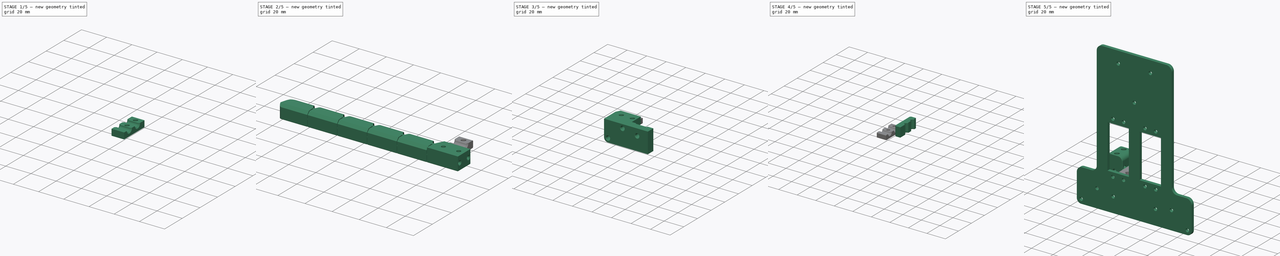
[diagram: build sequence overview — one tinted view per stage of 5, left to right]
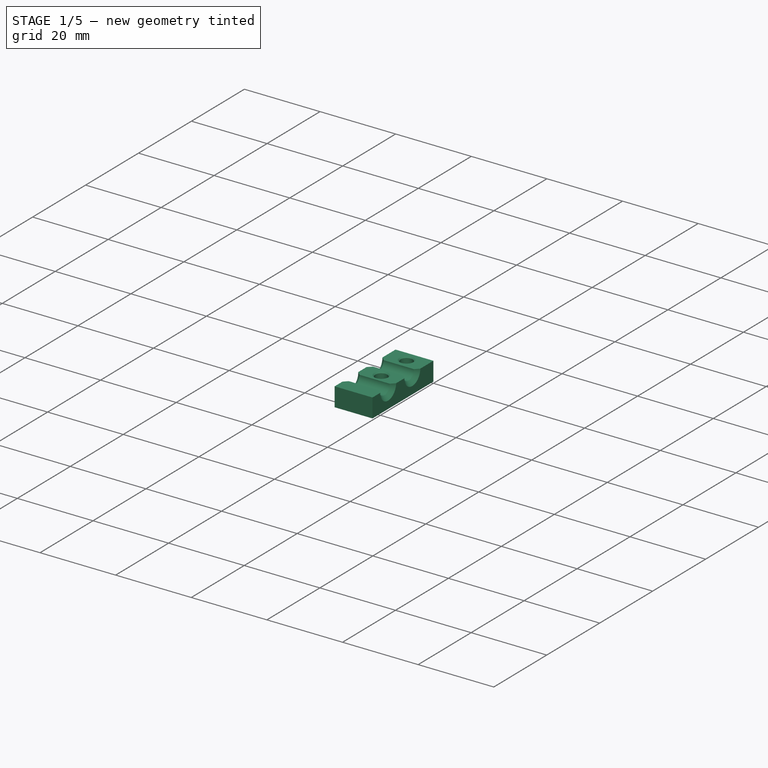
[diagram: stage 1 of 5 — iso view after this stage's code; geometry added in this stage tinted green]
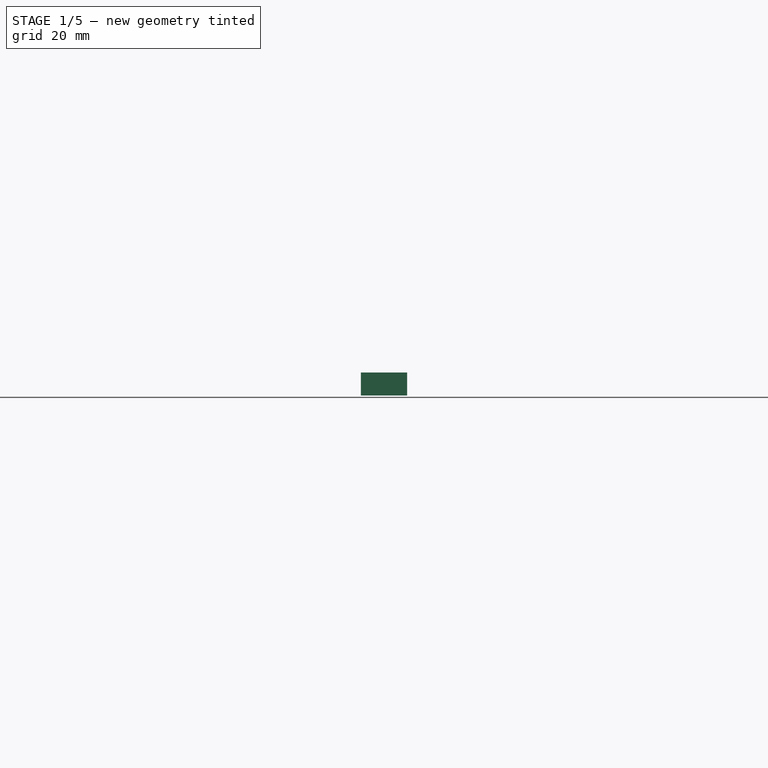
[diagram: stage 1 of 5 — front view after this stage's code; geometry added in this stage tinted green]
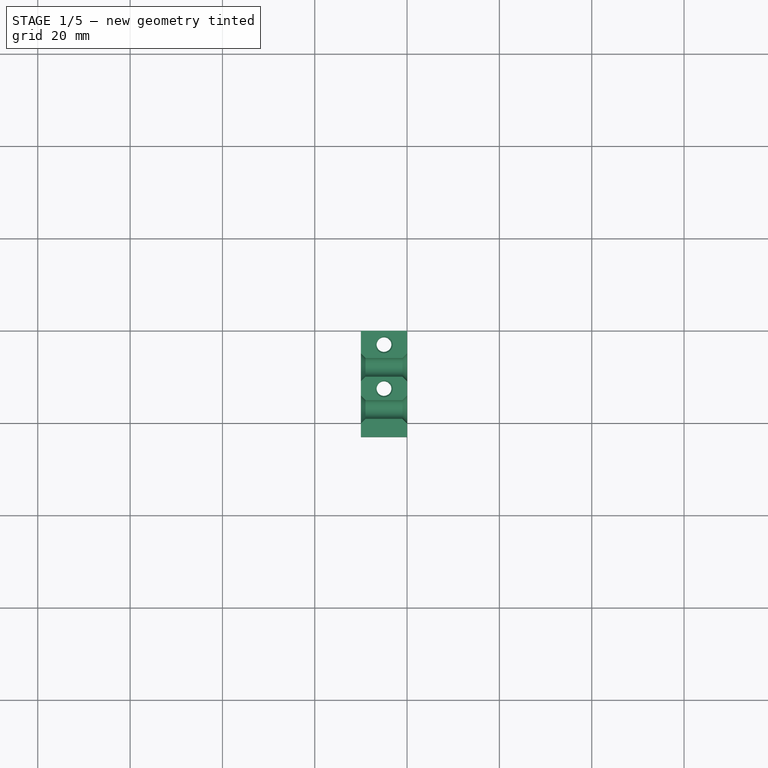
[diagram: stage 1 of 5 — top view after this stage's code; geometry added in this stage tinted green]
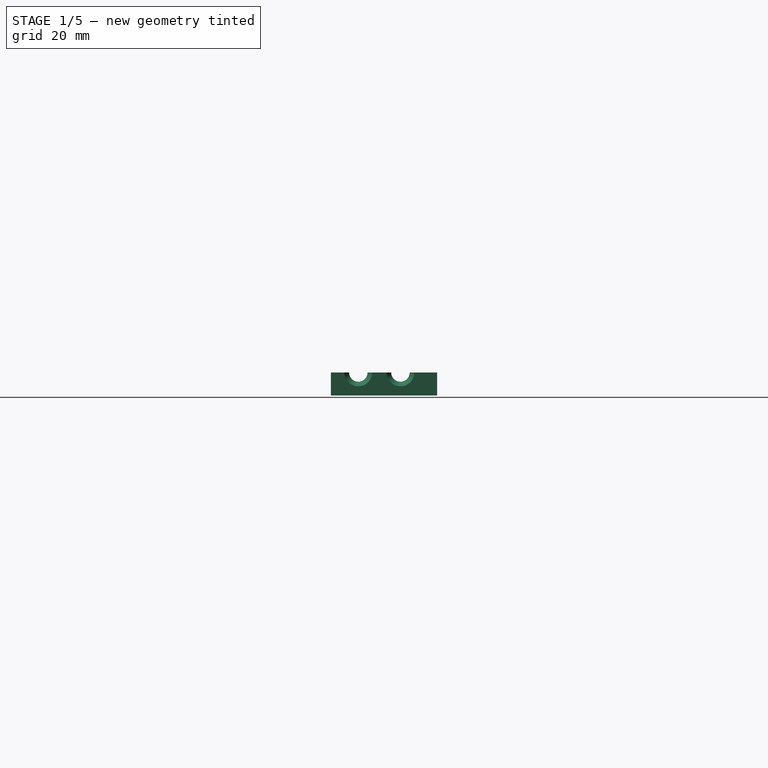
[diagram: stage 1 of 5 — right view after this stage's code; geometry added in this stage tinted green]
FCSTD DOCUMENT  (FreeCAD 2023.1102R14555 (Git shallow))
Label: finger-gripper
License: All rights reserved
LicenseURL: https://en.wikipedia.org/wiki/All_rights_reserved
objects: Sketcher::SketchObject×34, PartDesign::Chamfer×26, PartDesign::Pocket×18, PartDesign::Pad×14, PartDesign::Fillet×9, Part::SubShapeBinder×8, PartDesign::Body×7, PartDesign::SubShapeBinder×6, Part::Feature×5, App::Part×5, PartDesign::SubtractivePipe×3, PartDesign::Plane×2, PartDesign::LinearPattern×1, PartDesign::Line×1, PartDesign::Groove×1, PartDesign::Mirrored×1, TechDraw::DrawSVGTemplate×1, TechDraw::DrawProjGroupItem×1, TechDraw::DrawProjGroup×1, TechDraw::DrawPage×1, +1 more types
note: 316 computed .brp shape members not serialized (recipe doc carries the construction recipe); baked Part::Feature solids carry a one-line shape summary decoded from their .brp
EXTERNAL_REF file=main-actuator.FCStd obj=Part

FEATURE [PartDesign::Body] Body  label="FingerLeft"
  AutoGroupSolids = false
  ClaimAllChildren = false
  ExportMode = 0
  FixShape = 1
  Group = -> [Sketch,Pad,LinearPattern,Sketch001,Pad001,Sketch002,Pocket,Fillet,Fillet001,Sketch003,Pad002,Sketch004,Pocket001,Sketch005,Pocket002,Fillet002,Chamfer,Chamfer001,Sketch006,Pocket003,Chamfer002,Chamfer003,Sketch026,Pipe001,Pipe002,Chamfer019]
  InvalidShape = false
  Origin = -> Origin
  Tip = -> Chamfer019
  TreeRank = 181
  ValidateShape = false
  _ExportChildren = -> [Pad,LinearPattern,Pad001,Pocket,Fillet,Fillet001,Pad002,Pocket001,Pocket002,Fillet002,Chamfer,Chamfer001,Pocket003,Chamfer002,Chamfer003,Pipe001,Pipe002,Chamfer019]
  _GroupVersion = 1
FEATURE [Part::SubShapeBinder] Import005  label="Import005(ServoBody001)"
  BindCopyOnChange = 0
  BindMode = 0
  ClaimChildren = false
  Context = -> Part004 [Part002.Part001.Body005.Import005.]
  EdgeTolerance = 1e-06
  FillStyle = 0
  FixShape = 1
  Fuse = false
  InvalidShape = false
  MakeFace = false
  MergeEdges = true
  OffsetFill = false
  OffsetIntersection = false
  OffsetJoinType = 0
  OffsetOpenResult = false
  Outline = false
  PartialLoad = false
  Relative = true
  SplitEdges = false
  Support = -> [Part[Solid001.]]
  TightBound = false
  TreeRank = 262
  ValidateShape = false
  _Version = 8
FEATURE [Sketcher::SketchObject] Sketch027
  ArcFitTolerance = 1e-06
  AttachmentSupport = -> [XZ_Plane010]
  ExternalBSplineMaxDegree = 5
  ExternalBSplineTolerance = 0.0001
  ExternalGeometry = -> [Import005]
  FixShape = 1
  FullyConstrained = true
  InternalTolerance = 1e-06
  InvalidShape = false
  MakeInternals = false
  MapMode = 5
  Placement = pos=(0,0,0) rot=(1,0,0;1.5708rad)
  Support = -> [XZ_Plane010]
  TreeRank = 261
  ValidateShape = false
  sketch-geometry (12):
    g0: LineSegment StartX=-30.5 StartY=10.5 StartZ=0 EndX=10.5 EndY=10.5 EndZ=0
    g1: LineSegment StartX=10.5 StartY=10.5 StartZ=0 EndX=10.5 EndY=-10.5 EndZ=0
    g2: LineSegment StartX=10.5 StartY=-10.5 StartZ=0 EndX=-30.5 EndY=-10.5 EndZ=0
    g3: LineSegment StartX=-30.5 StartY=-10.5 StartZ=0 EndX=-30.5 EndY=10.5 EndZ=0
    g4: LineSegment StartX=-38 StartY=15 StartZ=0 EndX=30 EndY=15 EndZ=0
    g5: LineSegment StartX=30 StartY=15 StartZ=0 EndX=30 EndY=-15 EndZ=0
    g6: LineSegment StartX=30 StartY=-15 StartZ=0 EndX=-38 EndY=-15 EndZ=0
    g7: LineSegment StartX=-38 StartY=-15 StartZ=0 EndX=-38 EndY=15 EndZ=0
    g8: Circle CenterX=-34.5 CenterY=5 CenterZ=0 NormalX=0 NormalY=0 NormalZ=1 AngleXU=0 Radius=1.6
    g9: Circle CenterX=-34.5 CenterY=-5 CenterZ=0 NormalX=0 NormalY=0 NormalZ=1 AngleXU=0 Radius=1.6
    g10: Circle CenterX=14.5 CenterY=-5 CenterZ=0 NormalX=0 NormalY=0 NormalZ=1 AngleXU=0 Radius=1.6
    g11: Circle CenterX=14.5 CenterY=5 CenterZ=0 NormalX=0 NormalY=0 NormalZ=1 AngleXU=0 Radius=1.6
  constraints (31):
    c: Coincident(g0,g1)
    c: Coincident(g1,g2)
    c: Coincident(g2,g3)
    c: Coincident(g3,g0)
    c: Horizontal(g0)
    c: Horizontal(g2)
    c: Vertical(g1)
    c: Vertical(g3)
    c: Coincident(g4,g5)
    c: Coincident(g5,g6)
    c: Coincident(g6,g7)
    c: Coincident(g7,g4)
    c: Horizontal(g4)
    c: Horizontal(g6)
    c: Vertical(g5)
    c: Coincident(g11,g-6)
    c: Coincident(g10,g-5)
    c: Coincident(g8,g-3)
    c: Coincident(g9,g-4)
    c: Equal(g8,g9)
    c: Equal(g8,g11)
    c: Equal(g8,g10)
    c: Diameter(g8) = 3.2
    c: DistanceX(g-7,g0) = 0.5
    c: DistanceX(g0,g-8) = 0.5
    c: DistanceY(g-7,g0) = 0.5
    c: DistanceY(g1,g-7) = 0.5
    c: DistanceX(g4,g-8) = 8
    c: Symmetric(g4,g6,g-1)
    c: DistanceY(g7,g7) = 30
    c: DistanceX(g-7,g4) = 20
FEATURE [PartDesign::Pad] Pad011
  AddSubType = 0
  AlongSketchNormal = false
  AutoTaperInnerAngle = true
  CheckUpToFaceLimits = true
  ClaimChildren = false
  Direction = (0,-1,2e-16)
  Fit = 0
  FitJoin = 0
  FixShape = 1
  InnerFit = 0
  InnerFitJoin = 0
  InvalidShape = false
  Length = 5
  Length2 = 10
  Linearize = true
  NewSolid = false
  Profile = -> Sketch027
  ReferenceAxis = -> Sketch027 [N_Axis]
  Refine = true
  Suppress = false
  TaperInnerAngle = 0
  TaperInnerAngleRev = 0
  TreeRank = 263
  Type = 0
  ValidateShape = false
  _ProfileBasedVersion = 1
FEATURE [Sketcher::SketchObject] Sketch028
  ArcFitTolerance = 1e-06
  AttachmentSupport = -> [XY_Plane010]
  ExternalBSplineMaxDegree = 5
  ExternalBSplineTolerance = 0.0001
  ExternalGeometry = -> [Pad011]
  FixShape = 1
  FullyConstrained = true
  InternalTolerance = 1e-06
  InvalidShape = false
  MakeInternals = false
  MapMode = 5
  Support = -> [XY_Plane010]
  TreeRank = 264
  ValidateShape = false
  sketch-geometry (4):
    g0: LineSegment StartX=30 StartY=-5 StartZ=0 EndX=20 EndY=-5 EndZ=0
    g1: LineSegment StartX=20 StartY=-5 StartZ=0 EndX=20 EndY=-28 EndZ=0
    g2: LineSegment StartX=20 StartY=-28 StartZ=0 EndX=30 EndY=-28 EndZ=0
    g3: LineSegment StartX=30 StartY=-28 StartZ=0 EndX=30 EndY=-5 EndZ=0
  constraints (11):
    c: Coincident(g0,g1)
    c: Coincident(g1,g2)
    c: Coincident(g2,g3)
    c: Coincident(g3,g0)
    c: Horizontal(g0)
    c: Horizontal(g2)
    c: Vertical(g1)
    c: Vertical(g3)
    c: Coincident(g0,g-3)
    c: DistanceY(g1,g1) = 23
    c: DistanceX(g0,g0) = 10
FEATURE [PartDesign::Pad] Pad012
  AddSubType = 0
  AlongSketchNormal = false
  AutoTaperInnerAngle = true
  BaseFeature = -> Pad011
  CheckUpToFaceLimits = true
  ClaimChildren = false
  Direction = (0,0,1)
  Fit = 0
  FitJoin = 0
  FixShape = 1
  InnerFit = 0
  InnerFitJoin = 0
  InvalidShape = false
  Length = 10
  Length2 = 10
  Linearize = true
  NewSolid = false
  Profile = -> Sketch028
  ReferenceAxis = -> Sketch028 [N_Axis]
  Refine = true
  Suppress = false
  TaperInnerAngle = 0
  TaperInnerAngleRev = 0
  TreeRank = 265
  Type = 3
  UpToFace = -> Pad011 [Face1]
  ValidateShape = false
  _ProfileBasedVersion = 1
FEATURE [Part::SubShapeBinder] Import006  label="Import006(Chamfer011)"
  BindCopyOnChange = 0
  BindMode = 0
  ClaimChildren = false
  Context = -> Part004 [Part002.Part001.Body005.Import006.]
  EdgeTolerance = 1e-06
  FillStyle = 0
  FixShape = 1
  Fuse = false
  InvalidShape = false
  MakeFace = false
  MergeEdges = true
  OffsetFill = false
  OffsetIntersection = false
  OffsetJoinType = 0
  OffsetOpenResult = false
  Outline = false
  PartialLoad = false
  Relative = true
  SplitEdges = false
  Support = -> [Body003[Chamfer011.]]
  TightBound = false
  TreeRank = 267
  ValidateShape = false
  _Version = 8
FEATURE [Sketcher::SketchObject] Sketch029
  ArcFitTolerance = 1e-06
  AttachmentSupport = -> [Pad012]
  ExternalBSplineMaxDegree = 5
  ExternalBSplineTolerance = 0.0001
  ExternalGeometry = -> [Import006]
  FixShape = 1
  FullyConstrained = true
  InternalTolerance = 1e-06
  InvalidShape = false
  MakeInternals = false
  MapMode = 5
  Placement = pos=(30,0,0) rot=(0.57735,0.57735,0.57735;2.0944rad)
  Support = -> [Pad012]
  TreeRank = 266
  ValidateShape = false
  sketch-geometry (2):
    g0: Circle CenterX=-22.0675 CenterY=0 CenterZ=0 NormalX=0 NormalY=0 NormalZ=1 AngleXU=0 Radius=2
    g1: Circle CenterX=-12.9437 CenterY=0 CenterZ=0 NormalX=0 NormalY=0 NormalZ=1 AngleXU=0 Radius=2
  constraints (4):
    c: Coincident(g0,g-3)
    c: Coincident(g1,g-4)
    c: Equal(g0,g1)
    c: Diameter(g0) = 4
FEATURE [PartDesign::Pocket] Pocket014
  AddSubType = 1
  AlongSketchNormal = false
  AutoTaperInnerAngle = true
  BaseFeature = -> Pad012
  CheckUpToFaceLimits = true
  ClaimChildren = false
  Direction = (-1,0,0)
  Fit = 0
  FitJoin = 0
  FixShape = 1
  InnerFit = 0
  InnerFitJoin = 0
  InvalidShape = false
  Length = 5
  Length2 = 10
  Linearize = true
  NewSolid = false
  Profile = -> Sketch029
  ReferenceAxis = -> Sketch029 [N_Axis]
  Refine = true
  Suppress = false
  TaperInnerAngle = 0
  TaperInnerAngleRev = 0
  TreeRank = 268
  Type = 1
  ValidateShape = false
  _ProfileBasedVersion = 1
  _Version = 1
FEATURE [Sketcher::SketchObject] Sketch030
  ArcFitTolerance = 1e-06
  AttachmentSupport = -> [XY_Plane010]
  ExternalBSplineMaxDegree = 5
  ExternalBSplineTolerance = 0.0001
  ExternalGeometry = -> [Pocket014]
  FixShape = 1
  FullyConstrained = true
  InternalTolerance = 1e-06
  InvalidShape = false
  MakeInternals = false
  MapMode = 5
  Support = -> [XY_Plane010]
  TreeRank = 269
  ValidateShape = false
  sketch-geometry (5):
    g0: Circle CenterX=25 CenterY=-17.5056 CenterZ=0 NormalX=0 NormalY=0 NormalZ=1 AngleXU=0 Radius=1.6
    g1: Circle CenterX=25 CenterY=-7.97183 CenterZ=0 NormalX=0 NormalY=0 NormalZ=1 AngleXU=0 Radius=1.6
    g2: LineSegment [constr] StartX=25 StartY=-28 StartZ=0 EndX=25 EndY=-7.97183 EndZ=0
    g3: LineSegment [constr] StartX=20 StartY=-14.9437 StartZ=0 EndX=30 EndY=-20.0675 EndZ=0
    g4: LineSegment [constr] StartX=20 StartY=-5 StartZ=0 EndX=30 EndY=-10.9437 EndZ=0
  constraints (12):
    c: Diameter(g0) = 3.2
    c: Equal(g1,g0)
    c: Coincident(g2,g1)
    c: Vertical(g2)
    c: Symmetric(g-3,g-3,g2)
    c: PointOnObject(g0,g2)
    c: Coincident(g3,g-5)
    c: Coincident(g3,g-4)
    c: PointOnObject(g0,g3)
    c: Coincident(g4,g-8)
    c: Coincident(g4,g-6)
    c: PointOnObject(g1,g4)
FEATURE [PartDesign::Pocket] Pocket015
  AddSubType = 1
  AlongSketchNormal = false
  AutoTaperInnerAngle = true
  BaseFeature = -> Pocket014
  CheckUpToFaceLimits = true
  ClaimChildren = false
  Direction = (0,0,-1)
  Fit = 0
  FitJoin = 0
  FixShape = 1
  InnerFit = 0
  InnerFitJoin = 0
  InvalidShape = false
  Length = 5
  Length2 = 10
  Linearize = true
  NewSolid = false
  Profile = -> Sketch030
  ReferenceAxis = -> Sketch030 [N_Axis]
  Refine = true
  Reversed = true
  Suppress = false
  TaperInnerAngle = 0
  TaperInnerAngleRev = 0
  TreeRank = 270
  Type = 1
  ValidateShape = false
  _ProfileBasedVersion = 1
  _Version = 1
FEATURE [Sketcher::SketchObject] Sketch031
  ArcFitTolerance = 1e-06
  AttachmentSupport = -> [Pocket015]
  ExternalBSplineMaxDegree = 5
  ExternalBSplineTolerance = 0.0001
  ExternalGeometry = -> [Pocket015]
  FixShape = 1
  FullyConstrained = true
  InternalTolerance = 1e-06
  InvalidShape = false
  MakeInternals = false
  MapMode = 5
  Placement = pos=(0,3.5e-15,15) rot=(0,0,1;0rad)
  Support = -> [Pocket015]
  TreeRank = 271
  ValidateShape = false
  sketch-geometry (2):
    g0: Circle CenterX=25 CenterY=-7.97183 CenterZ=0 NormalX=0 NormalY=0 NormalZ=1 AngleXU=0 Radius=2.05
    g1: Circle CenterX=25 CenterY=-17.5056 CenterZ=0 NormalX=0 NormalY=0 NormalZ=1 AngleXU=0 Radius=2.05
  constraints (4):
    c: Coincident(g0,g-3)
    c: Coincident(g1,g-4)
    c: Equal(g1,g0)
    c: Diameter(g1) = 4.1
FEATURE [PartDesign::Pocket] Pocket016
  AddSubType = 1
  AlongSketchNormal = false
  AutoTaperInnerAngle = true
  BaseFeature = -> Pocket015
  CheckUpToFaceLimits = true
  ClaimChildren = false
  Direction = (0,-2e-16,-1)
  Fit = 0
  FitJoin = 0
  FixShape = 1
  InnerFit = 0
  InnerFitJoin = 0
  InvalidShape = false
  Length = 10
  Length2 = 10
  Linearize = true
  NewSolid = false
  Profile = -> Sketch031
  ReferenceAxis = -> Sketch031 [N_Axis]
  Refine = true
  Suppress = false
  TaperInnerAngle = 0
  TaperInnerAngleRev = 0
  TreeRank = 272
  Type = 0
  ValidateShape = false
  _ProfileBasedVersion = 1
  _Version = 1
FEATURE [Part::SubShapeBinder] Import007  label="Import007(Pocket016)"
  BindCopyOnChange = 0
  BindMode = 0
  ClaimChildren = false
  Context = -> Part004 [Part002.Part001.Body006.Import007.]
  EdgeTolerance = 1e-06
  FillStyle = 0
  FixShape = 1
  Fuse = false
  InvalidShape = false
  MakeFace = false
  MergeEdges = true
  OffsetFill = false
  OffsetIntersection = false
  OffsetJoinType = 0
  OffsetOpenResult = false
  Outline = false
  PartialLoad = false
  Relative = true
  SplitEdges = false
  Support = -> [Body005[Pocket016.]]
  TightBound = false
  TreeRank = 284
  ValidateShape = false
  _Version = 8
FEATURE [Sketcher::SketchObject] Sketch032
  ArcFitTolerance = 1e-06
  AttachmentSupport = -> [YZ_Plane011]
  ExternalBSplineMaxDegree = 5
  ExternalBSplineTolerance = 0.0001
  ExternalGeometry = -> [Import007]
  FixShape = 1
  FullyConstrained = true
  InternalTolerance = 1e-06
  InvalidShape = false
  MakeInternals = false
  MapMode = 5
  Placement = pos=(0,0,0) rot=(0.57735,0.57735,0.57735;2.0944rad)
  Support = -> [YZ_Plane011]
  TreeRank = 283
  ValidateShape = false
  sketch-geometry (8):
    g0: ArcOfCircle CenterX=-17.0675 CenterY=-3.8e-15 CenterZ=0 NormalX=0 NormalY=0 NormalZ=1 AngleXU=0 Radius=2 StartAngle=3.14159 EndAngle=6.28319
    g1: ArcOfCircle CenterX=-7.94365 CenterY=-1.8e-15 CenterZ=0 NormalX=0 NormalY=0 NormalZ=1 AngleXU=0 Radius=2 StartAngle=3.14159 EndAngle=6.28319
    g2: LineSegment StartX=-15.0675 StartY=-2.5e-15 StartZ=0 EndX=-9.94365 EndY=-2.4e-15 EndZ=0
    g3: LineSegment StartX=-5.94365 StartY=-5e-16 StartZ=0 EndX=0 EndY=0 EndZ=0
    g4: LineSegment StartX=-19.0675 StartY=-3.5e-15 StartZ=0 EndX=-23 EndY=-6.4e-15 EndZ=0
    g5: LineSegment StartX=-23 StartY=-6.4e-15 StartZ=0 EndX=-23 EndY=-5 EndZ=0
    g6: LineSegment StartX=-23 StartY=-5 StartZ=0 EndX=0 EndY=-5 EndZ=0
    g7: LineSegment StartX=0 StartY=-5 StartZ=0 EndX=0 EndY=0 EndZ=0
  constraints (20):
    c: Coincident(g0,g-3)
    c: Coincident(g0,g-3)
    c: Coincident(g0,g-3)
    c: Coincident(g1,g-4)
    c: Coincident(g1,g-4)
    c: Coincident(g1,g-4)
    c: Coincident(g2,g0)
    c: Coincident(g2,g1)
    c: Coincident(g3,g1)
    c: Coincident(g3,g-6)
    c: Coincident(g4,g0)
    c: Coincident(g4,g-5)
    c: Coincident(g5,g4)
    c: Vertical(g5)
    c: Coincident(g6,g5)
    c: PointOnObject(g6,g-6)
    c: Horizontal(g6)
    c: Coincident(g7,g6)
    c: Coincident(g7,g3)
    c: DistanceY(g5,g5) = 5
FEATURE [PartDesign::Pad] Pad013
  AddSubType = 0
  AlongSketchNormal = false
  AutoTaperInnerAngle = true
  CheckUpToFaceLimits = true
  ClaimChildren = false
  Direction = (1,-2e-16,3e-16)
  Fit = 0
  FitJoin = 0
  FixShape = 1
  InnerFit = 0
  InnerFitJoin = 0
  InvalidShape = false
  Length = 10
  Length2 = 10
  Linearize = true
  NewSolid = false
  Profile = -> Sketch032
  ReferenceAxis = -> Sketch032 [N_Axis]
  Refine = true
  Reversed = true
  Suppress = false
  TaperInnerAngle = 0
  TaperInnerAngleRev = 0
  TreeRank = 285
  Type = 0
  ValidateShape = false
  _ProfileBasedVersion = 1
FEATURE [PartDesign::SubShapeBinder] Binder005  label="Binder005(Pocket016)..."
  BindCopyOnChange = 0
  BindMode = 0
  ClaimChildren = false
  Context = -> Part004 [Part002.Part001.Body006.Binder005.]
  EdgeTolerance = 1e-06
  FillStyle = 0
  FixShape = 1
  Fuse = false
  InvalidShape = false
  MakeFace = true
  MergeEdges = true
  OffsetFill = false
  OffsetIntersection = false
  OffsetJoinType = 0
  OffsetOpenResult = false
  Outline = false
  PartialLoad = false
  Relative = true
  SplitEdges = false
  Support = -> [Body005[Pocket016.Face21,Pocket016.Face19]]
  TightBound = false
  TreeRank = 286
  ValidateShape = false
  _Version = 8
FEATURE [Sketcher::SketchObject] Sketch033
  ArcFitTolerance = 1e-06
  AttachmentSupport = -> [Pad013]
  ExternalBSplineMaxDegree = 5
  ExternalBSplineTolerance = 0.0001
  ExternalGeometry = -> [Binder005]
  FixShape = 1
  FullyConstrained = true
  InternalTolerance = 1e-06
  InvalidShape = false
  MakeInternals = false
  MapMode = 5
  Placement = pos=(0,0,-2.2e-15) rot=(0,0,1;0rad)
  Support = -> [Pad013]
  TreeRank = 287
  ValidateShape = false
FEATURE [PartDesign::Pocket] Pocket017
  AddSubType = 1
  AlongSketchNormal = false
  AutoTaperInnerAngle = true
  BaseFeature = -> Pad013
  CheckUpToFaceLimits = true
  ClaimChildren = false
  Direction = (3e-16,-2e-16,-1)
  Fit = 0
  FitJoin = 0
  FixShape = 1
  InnerFit = 0
  InnerFitJoin = 0
  InvalidShape = false
  Length = 5
  Length2 = 10
  Linearize = true
  NewSolid = false
  Profile = -> Sketch033
  ReferenceAxis = -> Sketch033 [N_Axis]
  Refine = true
  Suppress = false
  TaperInnerAngle = 0
  TaperInnerAngleRev = 0
  TreeRank = 288
  Type = 1
  ValidateShape = false
  _ProfileBasedVersion = 1
  _Version = 1
FEATURE [PartDesign::Chamfer] Chamfer020
  AddSubType = 0
  Angle = 45
  Base = -> Pocket017 [Edge11,Edge27,Edge25,Edge29]
  BaseFeature = -> Pocket017
  ChamferType = 0
  FixShape = 1
  FlipDirection = false
  InvalidShape = false
  NewSolid = false
  Refine = true
  Size = 0.3
  Size2 = 1
  SupportTransform = false
  Suppress = false
  TreeRank = 289
  UseAllEdges = false
  ValidateShape = false
FEATURE [PartDesign::Chamfer] Chamfer021
  AddSubType = 0
  Angle = 45
  Base = -> Chamfer020 [Edge11,Edge9,Edge10,Edge17]
  BaseFeature = -> Chamfer020
  ChamferType = 0
  FixShape = 1
  FlipDirection = false
  InvalidShape = false
  NewSolid = false
  Refine = true
  Size = 1
  Size2 = 1
  SupportTransform = false
  Suppress = false
  TreeRank = 290
  UseAllEdges = false
  ValidateShape = false
FEATURE [PartDesign::Body] Body006  label="BrideSupportTube"
  AutoGroupSolids = false
  ClaimAllChildren = false
  ExportMode = 0
  FixShape = 1
  Group = -> [Sketch032,Import007,Pad013,Binder005,Sketch033,Pocket017,Chamfer020,Chamfer021,Chamfer022]
  InvalidShape = false
  Origin = -> Origin011
  Placement = pos=(30,11,0) rot=(0,0,1;0rad)
  SingleSolid = true
  Tip = -> Chamfer022
  TreeRank = 282
  ValidateShape = false
  _ExportChildren = -> [Import007,Pad013,Binder005,Pocket017,Chamfer020,Chamfer021,Chamfer022]
  _GroupVersion = 1
FEATURE [PartDesign::Chamfer] Chamfer023
  AddSubType = 0
  Angle = 45
  Base = -> Pocket016 [Edge64,Edge61]
  BaseFeature = -> Pocket016
  ChamferType = 0
  FixShape = 1
  FlipDirection = false
  InvalidShape = false
  NewSolid = false
  Refine = true
  Size = 0.2
  Size2 = 1
  SupportTransform = false
  Suppress = false
  TreeRank = 292
  UseAllEdges = false
  ValidateShape = false
FEATURE [PartDesign::Chamfer] Chamfer024
  AddSubType = 0
  Angle = 45
  Base = -> Chamfer023 [Edge14,Edge12,Edge18,Edge32]
  BaseFeature = -> Chamfer023
  ChamferType = 0
  FixShape = 1
  FlipDirection = false
  InvalidShape = false
  NewSolid = false
  Refine = true
  Size = 1
  Size2 = 1
  SupportTransform = false
  Suppress = false
  TreeRank = 293
  UseAllEdges = false
  ValidateShape = false
FEATURE [PartDesign::Chamfer] Chamfer025
  AddSubType = 0
  Angle = 45
  Base = -> Chamfer024 [Edge4,Edge31,Edge43,Edge61]
  BaseFeature = -> Chamfer024
  ChamferType = 0
  FixShape = 1
  FlipDirection = false
  InvalidShape = false
  NewSolid = false
  Refine = true
  Size = 0.4
  Size2 = 1
  SupportTransform = false
  Suppress = false
  TreeRank = 294
  UseAllEdges = false
  ValidateShape = false
FEATURE [PartDesign::Chamfer] Chamfer026
  AddSubType = 0
  Angle = 45
  Base = -> Chamfer025 [Edge22,Edge42,Edge73,Edge74]
  BaseFeature = -> Chamfer025
  ChamferType = 0
  FixShape = 1
  FlipDirection = false
  InvalidShape = false
  NewSolid = false
  Refine = true
  Size = 1
  Size2 = 1
  SupportTransform = false
  Suppress = false
  TreeRank = 295
  UseAllEdges = false
  ValidateShape = false
FEATURE [PartDesign::Chamfer] Chamfer027
  AddSubType = 0
  Angle = 45
  Base = -> Chamfer026 [Edge8,Edge26,Edge53]
  BaseFeature = -> Chamfer026
  ChamferType = 0
  FixShape = 1
  FlipDirection = false
  InvalidShape = false
  NewSolid = false
  Refine = true
  Size = 4
  Size2 = 1
  SupportTransform = false
  Suppress = false
  TreeRank = 296
  UseAllEdges = false
  ValidateShape = false
FEATURE [PartDesign::Chamfer] Chamfer028
  AddSubType = 0
  Angle = 45
  Base = -> Chamfer027 [Edge41,Edge42,Edge22,Edge21,Edge48,Edge24,Edge43,Edge23,Face2]
  BaseFeature = -> Chamfer027
  ChamferType = 0
  FixShape = 1
  FlipDirection = false
  InvalidShape = false
  NewSolid = false
  Refine = true
  Size = 0.4
  Size2 = 1
  SupportTransform = false
  Suppress = false
  TreeRank = 297
  UseAllEdges = false
  ValidateShape = false
FEATURE [PartDesign::Body] Body005  label="SupportTube"
  AutoGroupSolids = false
  ClaimAllChildren = false
  ExportMode = 0
  FixShape = 1
  Group = -> [Sketch027,Import005,Pad011,Sketch028,Pad012,Sketch029,Import006,Pocket014,Sketch030,Pocket015,Sketch031,Pocket016,Chamfer023,Chamfer024,Chamfer025,Chamfer026,Chamfer027,Chamfer028]
  InvalidShape = false
  Origin = -> Origin010
  Placement = pos=(0,16,0) rot=(0,0,1;0rad)
  SingleSolid = true
  Tip = -> Chamfer028
  TreeRank = 260
  ValidateShape = false
  _ExportChildren = -> [Import005,Pad011,Pad012,Import006,Pocket014,Pocket015,Pocket016,Chamfer023,Chamfer024,Chamfer025,Chamfer026,Chamfer027,Chamfer028]
  _GroupVersion = 1
FEATURE [App::Part] Part001  label="Servo"
  ClaimAllChildren = false
  ExportMode = 1
  Group = -> [Solid,Part,Body003,Body005,Body006]
  Origin = -> Origin004
  Placement = pos=(19.8,-28,113.6) rot=(-0.707107,0,0.707107;3.14159rad)
  TreeRank = 99
  _ExportChildren = -> [Solid,Part,Body003,Body005,Body006]
  _GroupVersion = 1
FEATURE [App::Part] Part002  label="LeftFingerGripper"
  ClaimAllChildren = false
  ExportMode = 1
  Group = -> [Body002,Part001,Body,Body001,Part003,Link001,Body004]
  Origin = -> Origin006
  Placement = pos=(-32,41.15,0) rot=(0,0,1;0rad)
  TreeRank = 157
  _ExportChildren = -> [Body002,Part001,Body,Body001,Part003,Link001,Body004]
  _GroupVersion = 1
FEATURE [App::Part] Part004  label="DualFingerGripper"
  ClaimAllChildren = false
  ExportMode = 1
  Group = -> [Part002]
  Origin = -> Origin008
  TreeRank = 198
  _ExportChildren = -> [Part002]
  _GroupVersion = 1
note: 1 file-system path scrubbed to <path> (originals preserved in the JSON sidecar)

RESOLVED EXTERNAL PARTS (link-assembly join: the EXTERNAL_REF files above that resolve inside this repo's crawl, each included once):
---- part main-actuator.FCStd = doc fcstd_d0ad67d6f4f1 (84396 chars; too large to inline — full recipe in that document) ----
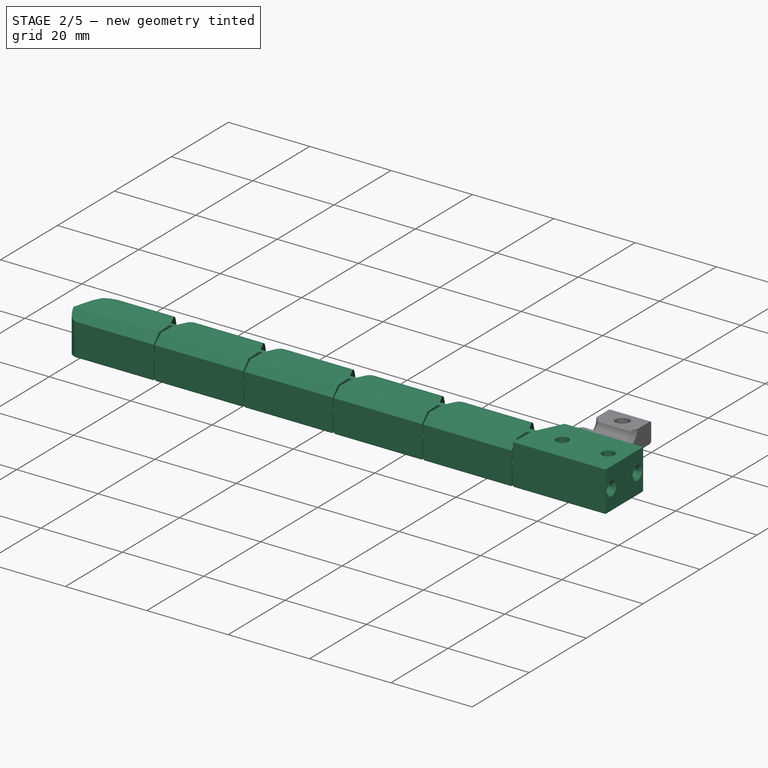
[diagram: stage 2 of 5 — iso view after this stage's code; geometry added in this stage tinted green]
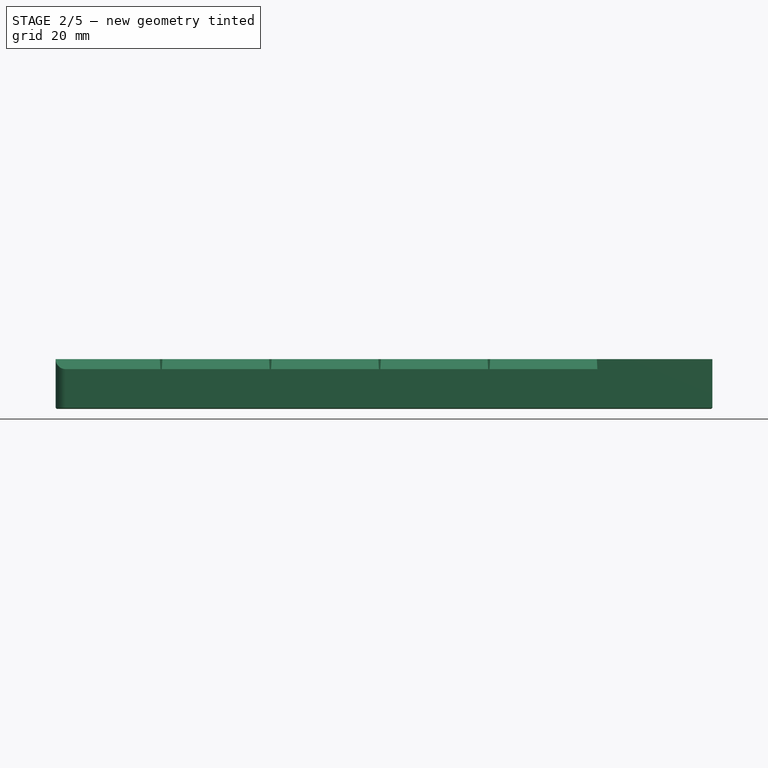
[diagram: stage 2 of 5 — front view after this stage's code; geometry added in this stage tinted green]
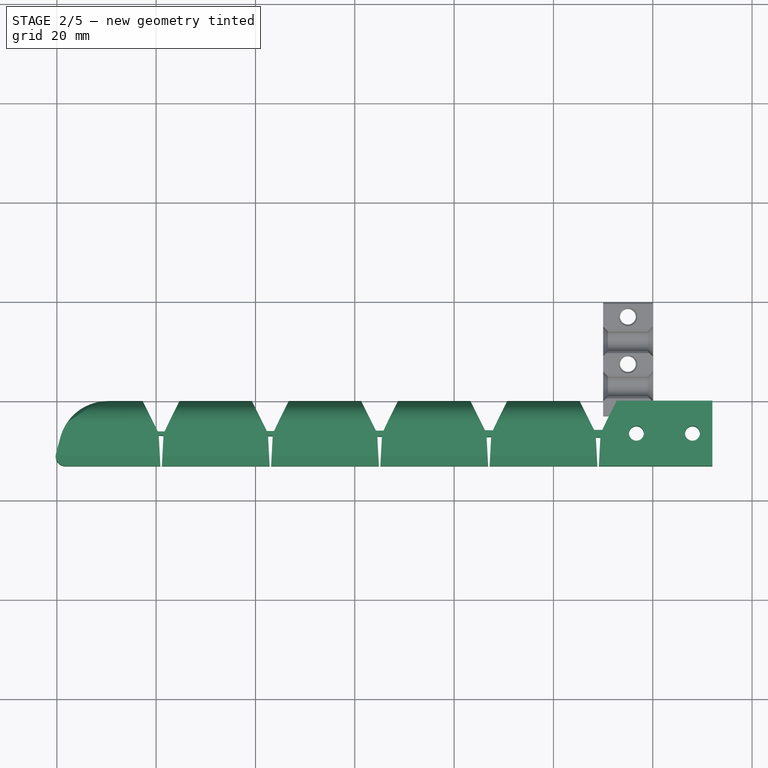
[diagram: stage 2 of 5 — top view after this stage's code; geometry added in this stage tinted green]
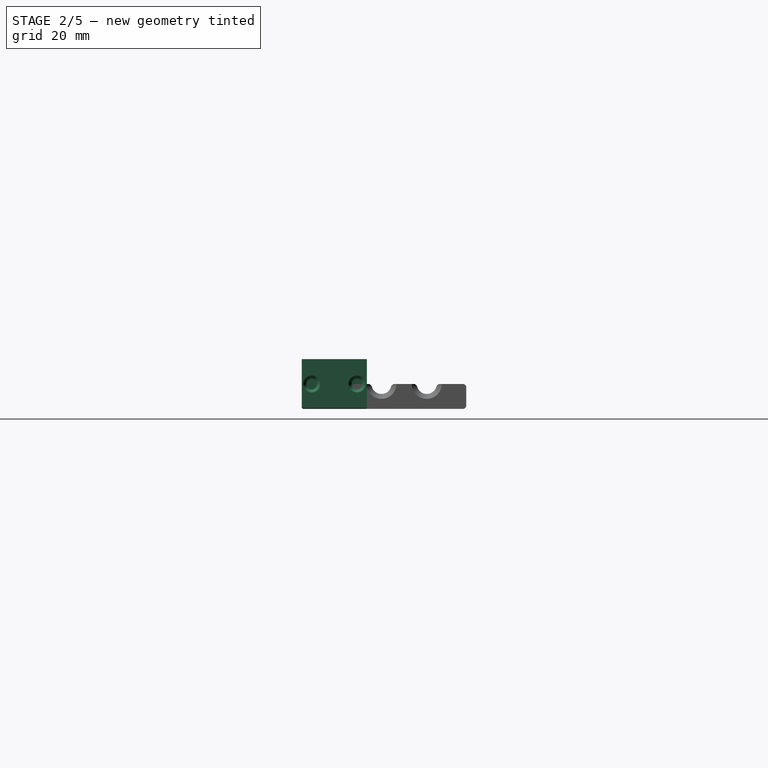
[diagram: stage 2 of 5 — right view after this stage's code; geometry added in this stage tinted green]
FEATURE [Sketcher::SketchObject] Sketch
  ArcFitTolerance = 1e-06
  AttachmentSupport = -> [XY_Plane]
  ExternalBSplineMaxDegree = 5
  ExternalBSplineTolerance = 0.0001
  FixShape = 1
  FullyConstrained = true
  InternalTolerance = 1e-06
  InvalidShape = false
  MakeInternals = false
  MapMode = 5
  Support = -> [XY_Plane]
  TreeRank = 11
  ValidateShape = false
  sketch-geometry (29):
    g0: LineSegment [constr] StartX=8.28427 StartY=-20 StartZ=0 EndX=20 EndY=-8.28427 EndZ=0
    g1: LineSegment [constr] StartX=20 StartY=-8.28427 StartZ=0 EndX=20 EndY=8.28427 EndZ=0
    g2: LineSegment [constr] StartX=20 StartY=8.28427 StartZ=0 EndX=8.28427 EndY=20 EndZ=0
    g3: LineSegment [constr] StartX=8.28427 StartY=20 StartZ=0 EndX=-8.28427 EndY=20 EndZ=0
    g4: LineSegment [constr] StartX=-8.28427 StartY=20 StartZ=0 EndX=-20 EndY=8.28427 EndZ=0
    g5: LineSegment [constr] StartX=-20 StartY=8.28427 StartZ=0 EndX=-20 EndY=-8.28427 EndZ=0
    g6: LineSegment [constr] StartX=-20 StartY=-8.28427 StartZ=0 EndX=-8.28427 EndY=-20 EndZ=0
    g7: LineSegment [constr] StartX=-8.28427 StartY=-20 StartZ=0 EndX=8.28427 EndY=-20 EndZ=0
    g8: Circle [constr] CenterX=0 CenterY=0 CenterZ=0 NormalX=0 NormalY=0 NormalZ=1 AngleXU=0 Radius=21.6478
    g9: LineSegment [constr] StartX=11 StartY=-26.5563 StartZ=0 EndX=26.5563 EndY=-11 EndZ=0
    g10: LineSegment [constr] StartX=26.5563 StartY=-11 StartZ=0 EndX=26.5563 EndY=11 EndZ=0
    g11: LineSegment [constr] StartX=26.5563 StartY=11 StartZ=0 EndX=11 EndY=26.5563 EndZ=0
    g12: LineSegment [constr] StartX=11 StartY=26.5563 StartZ=0 EndX=-11 EndY=26.5563 EndZ=0
    g13: LineSegment [constr] StartX=-11 StartY=26.5563 StartZ=0 EndX=-26.5563 EndY=11 EndZ=0
    g14: LineSegment [constr] StartX=-26.5563 StartY=11 StartZ=0 EndX=-26.5563 EndY=-11 EndZ=0
    g15: LineSegment [constr] StartX=-26.5563 StartY=-11 StartZ=0 EndX=-11 EndY=-26.5563 EndZ=0
    g16: LineSegment [constr] StartX=-11 StartY=-26.5563 StartZ=0 EndX=11 EndY=-26.5563 EndZ=0
    g17: Circle [constr] CenterX=0 CenterY=0 CenterZ=0 NormalX=0 NormalY=0 NormalZ=1 AngleXU=0 Radius=28.7444
    g18: LineSegment [constr] StartX=-7.28427 StartY=-20 StartZ=0 EndX=7.28427 EndY=-20 EndZ=0
    g19: LineSegment [constr] StartX=-11 StartY=-26.5563 StartZ=0 EndX=11 EndY=-26.5563 EndZ=0
    g20: LineSegment [constr] StartX=-10.5 StartY=-26.5563 StartZ=0 EndX=10.5 EndY=-26.5563 EndZ=0
    g21: LineSegment StartX=7.28427 StartY=-20 StartZ=0 EndX=10.5 EndY=-26.5563 EndZ=0
    g22: LineSegment StartX=-7.28427 StartY=-20 StartZ=0 EndX=-10.5 EndY=-26.5563 EndZ=0
    g23: LineSegment StartX=-10.5 StartY=-26.5563 StartZ=0 EndX=-10.85 EndY=-33.1127 EndZ=0
    g24: LineSegment StartX=-10.85 StartY=-33.1127 StartZ=0 EndX=10.85 EndY=-33.1127 EndZ=0
    g25: LineSegment StartX=10.85 StartY=-33.1127 StartZ=0 EndX=10.5 EndY=-26.5563 EndZ=0
    g26: LineSegment StartX=-7.28427 StartY=-20 StartZ=0 EndX=7.28427 EndY=-20 EndZ=0
    g27: LineSegment [constr] StartX=0 StartY=-20 StartZ=0 EndX=0 EndY=-26.5563 EndZ=0
    g28: LineSegment [constr] StartX=0 StartY=-26.5563 StartZ=0 EndX=0 EndY=-33.1127 EndZ=0
  constraints (68):
    c: Coincident(g0,g1)
    c: Coincident(g1,g2)
    c: Coincident(g2,g3)
    c: Coincident(g3,g4)
    c: Coincident(g4,g5)
    c: Coincident(g5,g6)
    c: Coincident(g6,g7)
    c: Coincident(g7,g0)
    c: Equal(g0, g1-g7) x7
    c: PointOnObject(g0,g8)
    c: PointOnObject(g1,g8)
    c: PointOnObject(g2,g8)
    c: PointOnObject(g3,g8)
    c: PointOnObject(g4,g8)
    c: PointOnObject(g5,g8)
    c: PointOnObject(g6,g8)
    c: PointOnObject(g7,g8)
    c: Coincident(g8,g-1)
    c: Horizontal(g7)
    c: Coincident(g9,g10)
    c: Coincident(g10,g11)
    c: Coincident(g11,g12)
    c: Coincident(g12,g13)
    c: Coincident(g13,g14)
    c: Coincident(g14,g15)
    c: Coincident(g15,g16)
    c: Coincident(g16,g9)
    c: Equal(g9, g10-g16) x7
    c: PointOnObject(g9,g17)
    c: PointOnObject(g10,g17)
    c: PointOnObject(g11,g17)
    c: PointOnObject(g12,g17)
    c: PointOnObject(g13,g17)
    c: PointOnObject(g14,g17)
    c: PointOnObject(g15,g17)
    c: PointOnObject(g16,g17)
    c: Coincident(g17,g8)
    c: Horizontal(g16)
    c: DistanceY(g0,g2) = 40
    c: DistanceX(g16,g16) = 22
    c: PointOnObject(g18,g7)
    c: Symmetric(g18,g18,g-2)
    c: Coincident(g19,g15)
    c: Coincident(g19,g9)
    c: DistanceX(g18,g0) = 1
    c: PointOnObject(g20,g16)
    c: Symmetric(g20,g20,g-2)
    c: Coincident(g21,g18)
    c: Coincident(g21,g20)
    c: Coincident(g22,g18)
    c: Coincident(g22,g20)
    c: DistanceX(g20,g9) = 0.5
    c: Coincident(g25,g24)
    c: Coincident(g24,g23)
    c: Symmetric(g23,g24,g-2)
    c: Symmetric(g25,g23,g-2)
    c: DistanceX(g24,g24) = 21.7
    c: Coincident(g26,g22)
    c: Coincident(g26,g21)
    c: Coincident(g23,g22)
    c: DistanceY(g21,g21) = 6.55635
    c: Vertical(g27)
    c: PointOnObject(g28,g24)
    c: Vertical(g28)
    c: Equal(g28,g27)
    c: Coincident(g28,g27)
    c: PointOnObject(g27,g26)
    c: Symmetric(g22,g21,g27)
FEATURE [PartDesign::Pad] Pad
  AddSubType = 0
  AlongSketchNormal = false
  AutoTaperInnerAngle = true
  CheckUpToFaceLimits = true
  ClaimChildren = false
  Direction = (0,0,1)
  Fit = 0
  FitJoin = 0
  FixShape = 1
  InnerFit = 0
  InnerFitJoin = 0
  InvalidShape = false
  Length = 10
  Length2 = 10
  Linearize = true
  Midplane = true
  NewSolid = false
  Profile = -> Sketch
  ReferenceAxis = -> Sketch [N_Axis]
  Refine = true
  Suppress = false
  TaperInnerAngle = 0
  TaperInnerAngleRev = 0
  TreeRank = 12
  Type = 0
  ValidateShape = false
  _ProfileBasedVersion = 1
FEATURE [PartDesign::LinearPattern] LinearPattern
  AddSubType = 0
  BaseFeature = -> Pad
  CopyShape = false
  Direction = -> Sketch [H_Axis]
  FixShape = 1
  InvalidShape = false
  Length = 110
  NewSolid = false
  Occurrences = 6
  OriginalSubs = -> [Pad]
  Originals = -> [Pad]
  ParallelTransform = true
  Refine = true
  Reversed = true
  SubTransform = true
  Suppress = false
  TreeRank = 13
  ValidateShape = false
  _Version = 3
FEATURE [Sketcher::SketchObject] Sketch001
  ArcFitTolerance = 1e-06
  AttachmentSupport = -> [XY_Plane]
  ExternalBSplineMaxDegree = 5
  ExternalBSplineTolerance = 0.0001
  ExternalGeometry = -> [LinearPattern]
  FixShape = 1
  FullyConstrained = true
  InternalTolerance = 1e-06
  InvalidShape = false
  MakeInternals = false
  MapMode = 5
  Support = -> [XY_Plane]
  TreeRank = 14
  ValidateShape = false
  sketch-geometry (6):
    g0: LineSegment StartX=-120.5 StartY=-26.5563 StartZ=0 EndX=-120.517 EndY=-26.8723 EndZ=0
    g1: LineSegment StartX=-120.517 StartY=-26.8723 StartZ=0 EndX=10.545 EndY=-27.3989 EndZ=0
    g2: LineSegment StartX=10.545 StartY=-27.3989 StartZ=0 EndX=10.5 EndY=-26.5563 EndZ=0
    g3: LineSegment StartX=10.5 StartY=-26.5563 StartZ=0 EndX=10.1285 EndY=-25.7989 EndZ=0
    g4: LineSegment StartX=-120.5 StartY=-26.5563 StartZ=0 EndX=-120.361 EndY=-26.2723 EndZ=0
    g5: LineSegment StartX=-120.361 StartY=-26.2723 StartZ=0 EndX=10.1285 EndY=-25.7989 EndZ=0
  constraints (16):
    c: Coincident(g0,g1)
    c: Coincident(g1,g2)
    c: PointOnObject(g1,g-3)
    c: PointOnObject(g0,g-4)
    c: Coincident(g3,g2)
    c: PointOnObject(g3,g-6)
    c: Coincident(g4,g0)
    c: PointOnObject(g4,g-5)
    c: Coincident(g5,g4)
    c: Coincident(g5,g3)
    c: Equal(g3,g2)
    c: Coincident(g2,g-6)
    c: DistanceY(g1,g3) = 1.6
    c: Equal(g0,g4)
    c: Coincident(g0,g-5)
    c: DistanceY(g0,g4) = 0.6
FEATURE [PartDesign::Pad] Pad001
  AddSubType = 0
  AlongSketchNormal = false
  AutoTaperInnerAngle = true
  BaseFeature = -> LinearPattern
  CheckUpToFaceLimits = true
  ClaimChildren = false
  Direction = (0,0,1)
  Fit = 0
  FitJoin = 0
  FixShape = 1
  InnerFit = 0
  InnerFitJoin = 0
  InvalidShape = false
  Length = 10
  Length2 = 10
  Linearize = true
  Midplane = true
  NewSolid = false
  Profile = -> Sketch001
  ReferenceAxis = -> Sketch001 [N_Axis]
  Refine = true
  Suppress = false
  TaperInnerAngle = 0
  TaperInnerAngleRev = 0
  TreeRank = 15
  Type = 0
  ValidateShape = false
  _ProfileBasedVersion = 1
FEATURE [Sketcher::SketchObject] Sketch002
  ArcFitTolerance = 1e-06
  AttachmentSupport = -> [XY_Plane]
  ExternalBSplineMaxDegree = 5
  ExternalBSplineTolerance = 0.0001
  ExternalGeometry = -> [Pad001]
  FixShape = 1
  FullyConstrained = true
  InternalTolerance = 1e-06
  InvalidShape = false
  MakeInternals = false
  MapMode = 5
  Support = -> [XY_Plane]
  TreeRank = 16
  ValidateShape = false
  sketch-geometry (4):
    g0: LineSegment StartX=-120.85 StartY=-33.1127 StartZ=0 EndX=-117.284 EndY=-20 EndZ=0
    g1: LineSegment StartX=-117.284 StartY=-20 StartZ=0 EndX=-124.284 EndY=-20 EndZ=0
    g2: LineSegment StartX=-124.284 StartY=-20 StartZ=0 EndX=-124.284 EndY=-33.1127 EndZ=0
    g3: LineSegment StartX=-124.284 StartY=-33.1127 StartZ=0 EndX=-120.85 EndY=-33.1127 EndZ=0
  constraints (10):
    c: Coincident(g0,g-4)
    c: Coincident(g0,g-3)
    c: Coincident(g1,g0)
    c: Horizontal(g1)
    c: Coincident(g2,g1)
    c: Vertical(g2)
    c: Coincident(g3,g2)
    c: Coincident(g3,g0)
    c: Horizontal(g3)
    c: DistanceX(g1,g1) = 7
FEATURE [PartDesign::Pocket] Pocket
  AddSubType = 1
  AlongSketchNormal = false
  AutoTaperInnerAngle = true
  BaseFeature = -> Pad001
  CheckUpToFaceLimits = true
  ClaimChildren = false
  Direction = (0,0,-1)
  Fit = 0
  FitJoin = 0
  FixShape = 1
  InnerFit = 0
  InnerFitJoin = 0
  InvalidShape = false
  Length = 5
  Length2 = 10
  Linearize = true
  Midplane = true
  NewSolid = false
  Profile = -> Sketch002
  ReferenceAxis = -> Sketch002 [N_Axis]
  Refine = true
  Suppress = false
  TaperInnerAngle = 0
  TaperInnerAngleRev = 0
  TreeRank = 17
  Type = 1
  ValidateShape = false
  _ProfileBasedVersion = 1
  _Version = 1
FEATURE [PartDesign::Fillet] Fillet
  AddSubType = 0
  Base = -> Pocket [Edge114]
  BaseFeature = -> Pocket
  FixShape = 1
  InvalidShape = false
  NewSolid = false
  Radius = 10
  Refine = true
  SupportTransform = false
  Suppress = false
  TreeRank = 18
  UseAllEdges = false
  ValidateShape = false
FEATURE [PartDesign::Fillet] Fillet001
  AddSubType = 0
  Base = -> Fillet [Edge55]
  BaseFeature = -> Fillet
  FixShape = 1
  InvalidShape = false
  NewSolid = false
  Radius = 2
  Refine = true
  SupportTransform = false
  Suppress = false
  TreeRank = 19
  UseAllEdges = false
  ValidateShape = false
FEATURE [Sketcher::SketchObject] Sketch003
  ArcFitTolerance = 1e-06
  AttachmentSupport = -> [XY_Plane]
  ExternalBSplineMaxDegree = 5
  ExternalBSplineTolerance = 0.0001
  ExternalGeometry = -> [Fillet001]
  FixShape = 1
  FullyConstrained = true
  InternalTolerance = 1e-06
  InvalidShape = false
  MakeInternals = false
  MapMode = 5
  Support = -> [XY_Plane]
  TreeRank = 20
  ValidateShape = false
  sketch-geometry (4):
    g0: LineSegment StartX=7.28427 StartY=-20 StartZ=0 EndX=12 EndY=-20 EndZ=0
    g1: LineSegment StartX=12 StartY=-20 StartZ=0 EndX=12 EndY=-33.1127 EndZ=0
    g2: LineSegment StartX=12 StartY=-33.1127 StartZ=0 EndX=7.28427 EndY=-33.1127 EndZ=0
    g3: LineSegment StartX=7.28427 StartY=-33.1127 StartZ=0 EndX=7.28427 EndY=-20 EndZ=0
  constraints (11):
    c: Coincident(g0,g1)
    c: Coincident(g1,g2)
    c: Coincident(g2,g3)
    c: Coincident(g3,g0)
    c: Horizontal(g0)
    c: Horizontal(g2)
    c: Vertical(g1)
    c: Vertical(g3)
    c: Coincident(g0,g-3)
    c: PointOnObject(g2,g-4)
    c: DistanceX(g-1,g0) = 12
FEATURE [PartDesign::Pad] Pad002
  AddSubType = 0
  AlongSketchNormal = false
  AutoTaperInnerAngle = true
  BaseFeature = -> Fillet001
  CheckUpToFaceLimits = true
  ClaimChildren = false
  Direction = (0,0,1)
  Fit = 0
  FitJoin = 0
  FixShape = 1
  InnerFit = 0
  InnerFitJoin = 0
  InvalidShape = false
  Length = 10
  Length2 = 10
  Linearize = true
  Midplane = true
  NewSolid = false
  Profile = -> Sketch003
  ReferenceAxis = -> Sketch003 [N_Axis]
  Refine = true
  Suppress = false
  TaperInnerAngle = 0
  TaperInnerAngleRev = 0
  TreeRank = 21
  Type = 0
  ValidateShape = false
  _ProfileBasedVersion = 1
FEATURE [Sketcher::SketchObject] Sketch004
  ArcFitTolerance = 1e-06
  AttachmentOffset = pos=(0,0,-11) rot=(0,0,1;0rad)
  AttachmentSupport = -> [YZ_Plane]
  ExternalBSplineMaxDegree = 5
  ExternalBSplineTolerance = 0.0001
  ExternalGeometry = -> [Pad002]
  FixShape = 1
  FullyConstrained = true
  InternalTolerance = 1e-06
  InvalidShape = false
  MakeInternals = false
  MapMode = 5
  Placement = pos=(-11,2.4e-15,-2.4e-15) rot=(0.57735,0.57735,0.57735;2.0944rad)
  Support = -> [YZ_Plane]
  TreeRank = 24
  ValidateShape = false
  sketch-geometry (6):
    g0: LineSegment StartX=-20 StartY=5 StartZ=0 EndX=-22 EndY=5 EndZ=0
    g1: LineSegment StartX=-22 StartY=5 StartZ=0 EndX=-20 EndY=1.5 EndZ=0
    g2: LineSegment StartX=-20 StartY=1.5 StartZ=0 EndX=-20 EndY=5 EndZ=0
    g3: LineSegment StartX=-33.1127 StartY=5 StartZ=0 EndX=-31.1127 EndY=5 EndZ=0
    g4: LineSegment StartX=-31.1127 StartY=5 StartZ=0 EndX=-33.1127 EndY=3 EndZ=0
    g5: LineSegment StartX=-33.1127 StartY=3 StartZ=0 EndX=-33.1127 EndY=5 EndZ=0
  constraints (16):
    c: Horizontal(g0)
    c: Coincident(g1,g0)
    c: Coincident(g2,g1)
    c: Coincident(g2,g0)
    c: DistanceX(g0,g0) = 2
    c: DistanceY(g2,g2) = 3.5
    c: Coincident(g0,g-3)
    c: Vertical(g2)
    c: Coincident(g3,g-4)
    c: Horizontal(g3)
    c: Coincident(g4,g3)
    c: PointOnObject(g4,g-4)
    c: Coincident(g5,g4)
    c: Coincident(g5,g3)
    c: DistanceY(g5,g5) = 2
    c: DistanceX(g3,g3) = 2
FEATURE [PartDesign::Pocket] Pocket001
  AddSubType = 1
  AlongSketchNormal = false
  AutoTaperInnerAngle = true
  BaseFeature = -> Pad002
  CheckUpToFaceLimits = true
  ClaimChildren = false
  Direction = (-1,2e-16,-3e-16)
  Fit = 0
  FitJoin = 0
  FixShape = 1
  InnerFit = 0
  InnerFitJoin = 0
  InvalidShape = false
  Length = 5
  Length2 = 10
  Linearize = true
  NewSolid = false
  Profile = -> Sketch004
  ReferenceAxis = -> Sketch004 [N_Axis]
  Refine = true
  Suppress = false
  TaperInnerAngle = 0
  TaperInnerAngleRev = 0
  TreeRank = 25
  Type = 1
  ValidateShape = false
  _ProfileBasedVersion = 1
  _Version = 1
FEATURE [Sketcher::SketchObject] Sketch005
  ArcFitTolerance = 1e-06
  AttachmentSupport = -> [YZ_Plane]
  ExternalBSplineMaxDegree = 5
  ExternalBSplineTolerance = 0.0001
  ExternalGeometry = -> [Pocket001]
  FixShape = 1
  FullyConstrained = true
  InternalTolerance = 1e-06
  InvalidShape = false
  MakeInternals = false
  MapMode = 5
  Placement = pos=(0,0,0) rot=(0.57735,0.57735,0.57735;2.0944rad)
  Support = -> [YZ_Plane]
  TreeRank = 26
  ValidateShape = false
  sketch-geometry (2):
    g0: Circle CenterX=-31.1127 CenterY=0 CenterZ=0 NormalX=0 NormalY=0 NormalZ=1 AngleXU=0 Radius=1.1
    g1: Circle CenterX=-22 CenterY=0 CenterZ=0 NormalX=0 NormalY=0 NormalZ=1 AngleXU=0 Radius=1.1
  constraints (7):
    c: PointOnObject(g0,g-1)
    c: PointOnObject(g1,g-1)
    c: Equal(g1,g0)
    c: Diameter(g1) = 2.2
    c: DistanceX(g-4,g0) = 2
    c: DistanceX(g1,g-3) = 2
    c: DistanceX(g0,g1) = 9.1127
FEATURE [PartDesign::Pocket] Pocket002
  AddSubType = 1
  AlongSketchNormal = false
  AutoTaperInnerAngle = true
  BaseFeature = -> Pocket001
  CheckUpToFaceLimits = true
  ClaimChildren = false
  Direction = (-1,2e-16,-3e-16)
  Fit = 0
  FitJoin = 0
  FixShape = 1
  InnerFit = 0
  InnerFitJoin = 0
  InvalidShape = false
  Length = 10
  Length2 = 210
  Linearize = true
  Midplane = true
  NewSolid = false
  Profile = -> Sketch005
  ReferenceAxis = -> Sketch005 [N_Axis]
  Refine = true
  Suppress = false
  TaperInnerAngle = 0
  TaperInnerAngleRev = 0
  TreeRank = 27
  Type = 4
  ValidateShape = false
  _ProfileBasedVersion = 1
  _Version = 1
FEATURE [PartDesign::Fillet] Fillet002
  AddSubType = 0
  Base = -> Pocket002 [Edge130,Edge22,Edge121,Edge18,Edge14,Edge112,Edge10,Edge103,Edge26,Edge139]
  BaseFeature = -> Pocket002
  FixShape = 1
  InvalidShape = false
  NewSolid = false
  Radius = 4
  Refine = true
  SupportTransform = false
  Suppress = false
  TreeRank = 28
  UseAllEdges = false
  ValidateShape = false
FEATURE [PartDesign::Chamfer] Chamfer
  AddSubType = 0
  Angle = 45
  Base = -> Fillet002 [Edge196,Edge195,Edge199,Edge184,Edge173,Edge188,Edge177,Edge163,Edge159,Edge145,Edge135,Edge149,Edge131,Edge117,Edge103,Edge89,Edge107,Edge121,Edge93,Edge79,Edge75,Edge62]
  BaseFeature = -> Fillet002
  ChamferType = 0
  FixShape = 1
  FlipDirection = false
  InvalidShape = false
  NewSolid = false
  Refine = true
  Size = 0.6
  Size2 = 1
  SupportTransform = false
  Suppress = false
  TreeRank = 29
  UseAllEdges = false
  ValidateShape = false
FEATURE [PartDesign::Chamfer] Chamfer001
  AddSubType = 0
  Angle = 45
  Base = -> Chamfer [Face5]
  BaseFeature = -> Chamfer
  ChamferType = 0
  FixShape = 1
  FlipDirection = false
  InvalidShape = false
  NewSolid = false
  Refine = true
  Size = 0.2
  Size2 = 1
  SupportTransform = false
  Suppress = false
  TreeRank = 30
  UseAllEdges = false
  ValidateShape = false
FEATURE [Sketcher::SketchObject] Sketch006
  ArcFitTolerance = 1e-06
  AttachmentSupport = -> [XY_Plane]
  ExternalBSplineMaxDegree = 5
  ExternalBSplineTolerance = 0.0001
  ExternalGeometry = -> [Chamfer001]
  FixShape = 1
  FullyConstrained = false
  InternalTolerance = 1e-06
  InvalidShape = false
  MakeInternals = false
  MapMode = 5
  Support = -> [XY_Plane]
  TreeRank = 31
  ValidateShape = false
  sketch-geometry (3):
    g0: Circle CenterX=-3.28427 CenterY=-26.5563 CenterZ=0 NormalX=0 NormalY=0 NormalZ=1 AngleXU=0 Radius=1.5
    g1: Circle CenterX=8 CenterY=-26.5563 CenterZ=0 NormalX=0 NormalY=0 NormalZ=1 AngleXU=0 Radius=1.5
    g2: LineSegment [constr] StartX=-3.28427 StartY=-26.5563 StartZ=0 EndX=8 EndY=-26.5563 EndZ=0
  constraints (6):
    c: Equal(g1,g0)
    c: Diameter(g1) = 3
    c: Coincident(g2,g0)
    c: Coincident(g2,g1)
    c: DistanceX(g-3,g0) = 4
    c: DistanceX(g1,g-3) = 4
FEATURE [PartDesign::Pocket] Pocket003
  AddSubType = 1
  AlongSketchNormal = false
  AutoTaperInnerAngle = true
  BaseFeature = -> Chamfer001
  CheckUpToFaceLimits = true
  ClaimChildren = false
  Direction = (0,0,-1)
  Fit = 0
  FitJoin = 0
  FixShape = 1
  InnerFit = 0
  InnerFitJoin = 0
  InvalidShape = false
  Length = 5
  Length2 = 10
  Linearize = true
  Midplane = true
  NewSolid = false
  Profile = -> Sketch006
  ReferenceAxis = -> Sketch006 [N_Axis]
  Refine = true
  Suppress = false
  TaperInnerAngle = 0
  TaperInnerAngleRev = 0
  TreeRank = 32
  Type = 1
  ValidateShape = false
  _ProfileBasedVersion = 1
  _Version = 1
FEATURE [PartDesign::Chamfer] Chamfer022
  AddSubType = 0
  Angle = 45
  Base = -> Chamfer021 [Edge1,Edge33,Edge8,Edge10,Edge36,Edge37,Edge40,Edge39]
  BaseFeature = -> Chamfer021
  ChamferType = 0
  FixShape = 1
  FlipDirection = false
  InvalidShape = false
  NewSolid = false
  Refine = true
  Size = 0.4
  Size2 = 1
  SupportTransform = false
  Suppress = false
  TreeRank = 291
  UseAllEdges = false
  ValidateShape = false
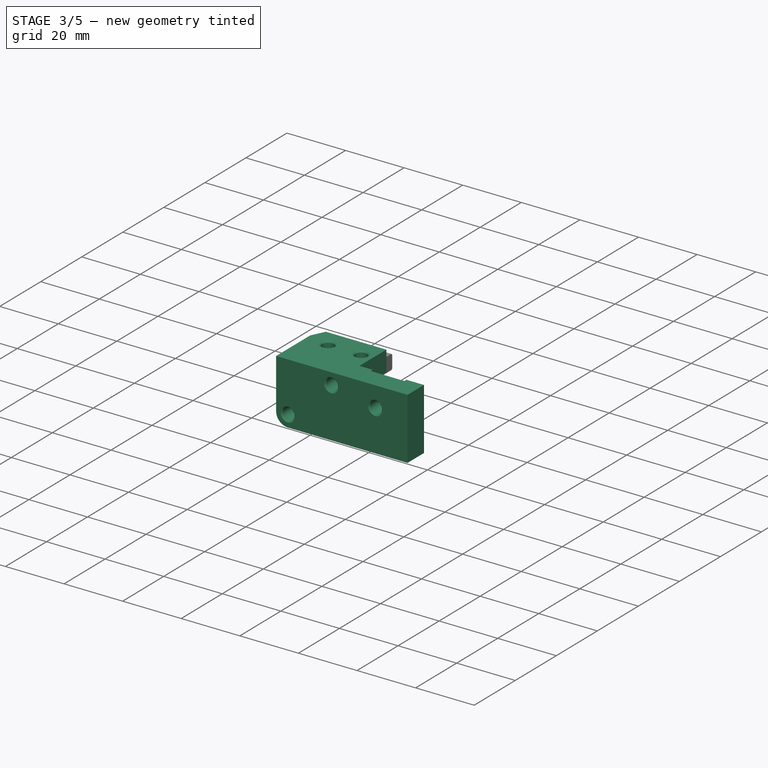
[diagram: stage 3 of 5 — iso view after this stage's code; geometry added in this stage tinted green]
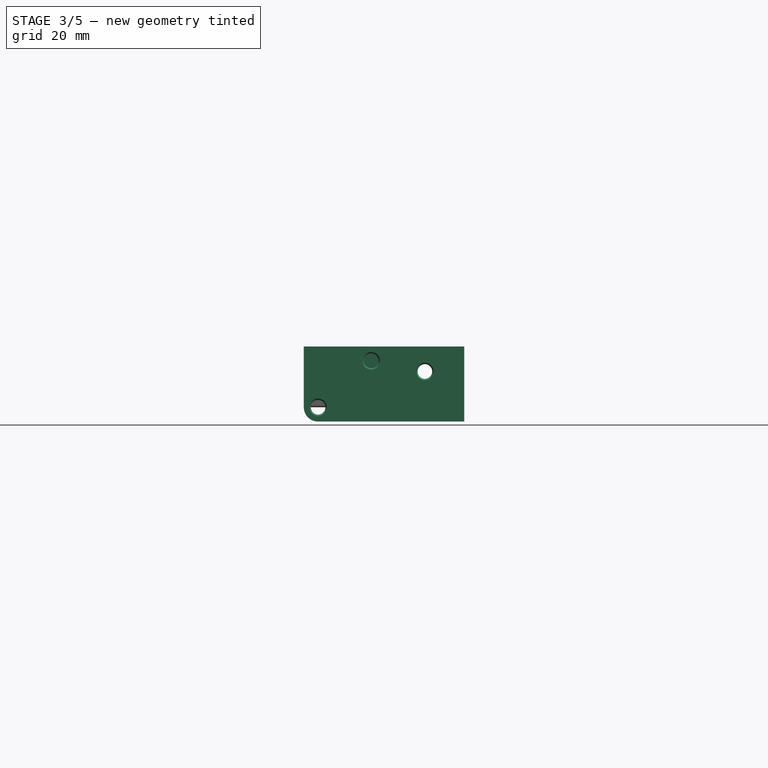
[diagram: stage 3 of 5 — front view after this stage's code; geometry added in this stage tinted green]
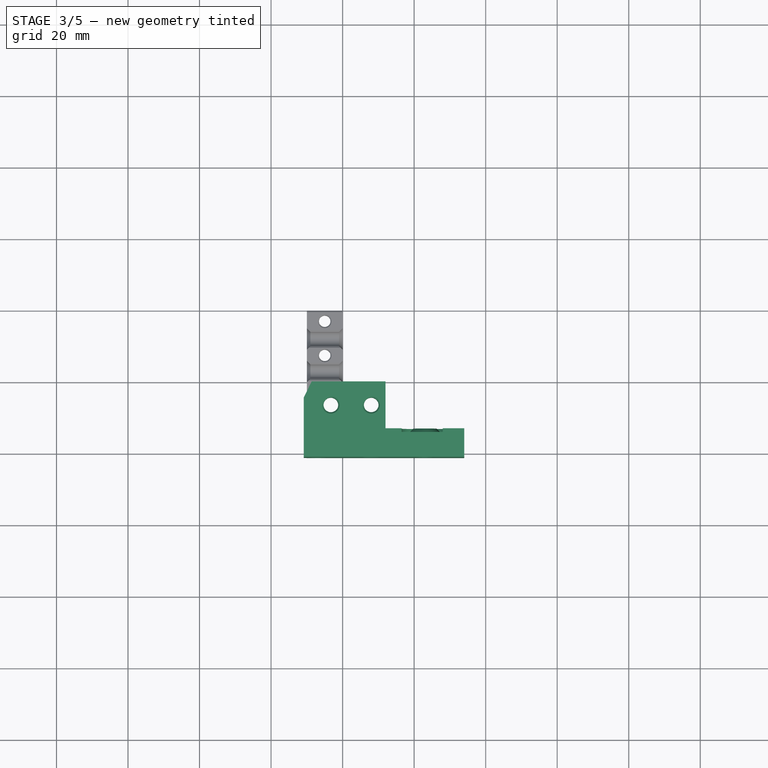
[diagram: stage 3 of 5 — top view after this stage's code; geometry added in this stage tinted green]
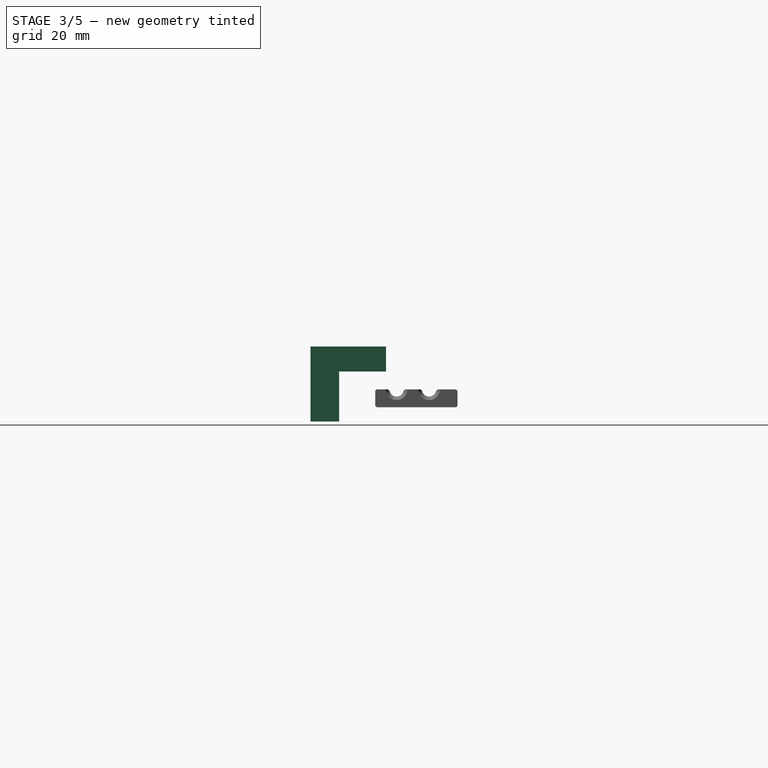
[diagram: stage 3 of 5 — right view after this stage's code; geometry added in this stage tinted green]
FEATURE [PartDesign::Chamfer] Chamfer002
  AddSubType = 0
  Angle = 45
  Base = -> Pocket003 [Edge67,Edge66,Edge121,Edge122]
  BaseFeature = -> Pocket003
  ChamferType = 0
  FixShape = 1
  FlipDirection = false
  InvalidShape = false
  NewSolid = false
  Refine = true
  Size = 0.4
  Size2 = 1
  SupportTransform = false
  Suppress = false
  TreeRank = 33
  UseAllEdges = false
  ValidateShape = false
FEATURE [PartDesign::Chamfer] Chamfer003
  AddSubType = 0
  Angle = 45
  Base = -> Chamfer002 [Edge43,Edge47]
  BaseFeature = -> Chamfer002
  ChamferType = 0
  FixShape = 1
  FlipDirection = false
  InvalidShape = false
  NewSolid = false
  Refine = true
  Size = 0.4
  Size2 = 1
  SupportTransform = false
  Suppress = false
  TreeRank = 34
  UseAllEdges = false
  ValidateShape = false
FEATURE [Part::SubShapeBinder] Import  label="Import(Pad002)"
  BindCopyOnChange = 0
  BindMode = 0
  ClaimChildren = false
  Context = -> Part004 [Part002.Body001.Import.]
  EdgeTolerance = 1e-06
  FillStyle = 0
  FixShape = 1
  Fuse = false
  InvalidShape = false
  MakeFace = false
  MergeEdges = true
  OffsetFill = false
  OffsetIntersection = false
  OffsetJoinType = 0
  OffsetOpenResult = false
  Outline = false
  PartialLoad = false
  Relative = true
  SplitEdges = false
  Support = -> [Body[Pad002.]]
  TightBound = false
  TreeRank = 46
  ValidateShape = false
  _Version = 8
FEATURE [Sketcher::SketchObject] Sketch007
  ArcFitTolerance = 1e-06
  AttachmentSupport = -> [XY_Plane001]
  ExternalBSplineMaxDegree = 5
  ExternalBSplineTolerance = 0.0001
  ExternalGeometry = -> [Import]
  FixShape = 1
  FullyConstrained = true
  InternalTolerance = 1e-06
  InvalidShape = false
  MakeInternals = false
  MapMode = 5
  Support = -> [XY_Plane001]
  TreeRank = 45
  ValidateShape = false
  sketch-geometry (4):
    g0: LineSegment StartX=-10.85 StartY=-33.1127 StartZ=0 EndX=34 EndY=-33.1127 EndZ=0
    g1: LineSegment StartX=34 StartY=-33.1127 StartZ=0 EndX=34 EndY=-41.1127 EndZ=0
    g2: LineSegment StartX=34 StartY=-41.1127 StartZ=0 EndX=-10.85 EndY=-41.1127 EndZ=0
    g3: LineSegment StartX=-10.85 StartY=-33.1127 StartZ=0 EndX=-10.85 EndY=-41.1127 EndZ=0
  constraints (11):
    c: Vertical(g1)
    c: Horizontal(g2)
    c: Coincident(g3,g0)
    c: Coincident(g3,g2)
    c: Coincident(g2,g1)
    c: Vertical(g3)
    c: DistanceY(g3,g3) = 8
    c: Horizontal(g0)
    c: Coincident(g-3,g0)
    c: Coincident(g0,g1)
    c: DistanceX(g-3,g0) = 22
FEATURE [PartDesign::Pad] Pad003
  AddSubType = 0
  AlongSketchNormal = false
  AutoTaperInnerAngle = true
  CheckUpToFaceLimits = true
  ClaimChildren = false
  Direction = (0,0,1)
  Fit = 0
  FitJoin = 0
  FixShape = 1
  InnerFit = 0
  InnerFitJoin = 0
  InvalidShape = false
  Length = 12
  Length2 = 9
  Linearize = true
  NewSolid = false
  Profile = -> Sketch007
  ReferenceAxis = -> Sketch007 [N_Axis]
  Refine = true
  Suppress = false
  TaperInnerAngle = 0
  TaperInnerAngleRev = 0
  TreeRank = 47
  Type = 4
  ValidateShape = false
  _ProfileBasedVersion = 1
FEATURE [Sketcher::SketchObject] Sketch008
  ArcFitTolerance = 1e-06
  AttachmentSupport = -> [Pad003]
  ExternalBSplineMaxDegree = 5
  ExternalBSplineTolerance = 0.0001
  ExternalGeometry = -> [Pad003,Import]
  FixShape = 1
  FullyConstrained = true
  InternalTolerance = 1e-06
  InvalidShape = false
  MakeInternals = false
  MapMode = 5
  Placement = pos=(0,-33.1127,0) rot=(0,0.707107,0.707107;3.14159rad)
  Support = -> [Pad003]
  TreeRank = 48
  ValidateShape = false
  sketch-geometry (4):
    g0: LineSegment StartX=10.85 StartY=12 StartZ=0 EndX=-12 EndY=12 EndZ=0
    g1: LineSegment StartX=-12 StartY=12 StartZ=0 EndX=-12 EndY=5 EndZ=0
    g2: LineSegment StartX=-12 StartY=5 StartZ=0 EndX=10.85 EndY=5 EndZ=0
    g3: LineSegment StartX=10.85 StartY=5 StartZ=0 EndX=10.85 EndY=12 EndZ=0
  constraints (10):
    c: Coincident(g0,g1)
    c: Coincident(g1,g2)
    c: Coincident(g2,g3)
    c: Coincident(g3,g0)
    c: Horizontal(g0)
    c: Horizontal(g2)
    c: Vertical(g1)
    c: Vertical(g3)
    c: Coincident(g0,g-3)
    c: Coincident(g1,g-4)
FEATURE [PartDesign::Pad] Pad004
  AddSubType = 0
  AlongSketchNormal = false
  AutoTaperInnerAngle = true
  BaseFeature = -> Pad003
  CheckUpToFaceLimits = true
  ClaimChildren = false
  Direction = (0,1,-2e-16)
  Fit = 0
  FitJoin = 0
  FixShape = 1
  InnerFit = 0
  InnerFitJoin = 0
  InvalidShape = false
  Length = 11.75
  Length2 = 10
  Linearize = true
  NewSolid = false
  Profile = -> Sketch008
  ReferenceAxis = -> Sketch008 [N_Axis]
  Refine = true
  Suppress = false
  TaperInnerAngle = 0
  TaperInnerAngleRev = 0
  TreeRank = 49
  Type = 3
  UpToFace = -> Import [Face47]
  ValidateShape = false
  _ProfileBasedVersion = 1
FEATURE [PartDesign::SubShapeBinder] Binder  label="Binder(Sketch006)"
  BindCopyOnChange = 0
  BindMode = 0
  ClaimChildren = false
  Context = -> Part004 [Part002.Body001.Binder.]
  EdgeTolerance = 1e-06
  FillStyle = 0
  FixShape = 1
  Fuse = false
  InvalidShape = false
  MakeFace = true
  MergeEdges = true
  OffsetFill = false
  OffsetIntersection = false
  OffsetJoinType = 0
  OffsetOpenResult = false
  Outline = false
  PartialLoad = false
  Relative = true
  SplitEdges = false
  Support = -> [Body[Sketch006.]]
  TightBound = false
  TreeRank = 50
  ValidateShape = false
  _Version = 8
FEATURE [Sketcher::SketchObject] Sketch009
  ArcFitTolerance = 1e-06
  AttachmentSupport = -> [Pad004]
  ExternalBSplineMaxDegree = 5
  ExternalBSplineTolerance = 0.0001
  ExternalGeometry = -> [Binder]
  FixShape = 1
  FullyConstrained = true
  InternalTolerance = 1e-06
  InvalidShape = false
  MakeInternals = false
  MapMode = 5
  Placement = pos=(0,1.1e-15,5) rot=(1,0,0;3.14159rad)
  Support = -> [Pad004]
  TreeRank = 51
  ValidateShape = false
  sketch-geometry (2):
    g0: Circle CenterX=-3.28427 CenterY=26.5563 CenterZ=0 NormalX=0 NormalY=0 NormalZ=1 AngleXU=0 Radius=2.05
    g1: Circle CenterX=8 CenterY=26.5563 CenterZ=0 NormalX=0 NormalY=0 NormalZ=1 AngleXU=0 Radius=2.05
  constraints (4):
    c: Coincident(g0,g-3)
    c: Coincident(g1,g-4)
    c: Equal(g1,g0)
    c: Diameter(g1) = 4.1
FEATURE [PartDesign::Pocket] Pocket004
  AddSubType = 1
  AlongSketchNormal = false
  AutoTaperInnerAngle = true
  BaseFeature = -> Pad004
  CheckUpToFaceLimits = true
  ClaimChildren = false
  Direction = (0,2e-16,1)
  Fit = 0
  FitJoin = 0
  FixShape = 1
  InnerFit = 0
  InnerFitJoin = 0
  InvalidShape = false
  Length = 5
  Length2 = 10
  Linearize = true
  NewSolid = false
  Profile = -> Sketch009
  ReferenceAxis = -> Sketch009 [N_Axis]
  Refine = true
  Suppress = false
  TaperInnerAngle = 0
  TaperInnerAngleRev = 0
  TreeRank = 52
  Type = 1
  ValidateShape = false
  _ProfileBasedVersion = 1
  _Version = 1
FEATURE [Sketcher::SketchObject] Sketch010
  ArcFitTolerance = 1e-06
  AttachmentSupport = -> [Pocket004]
  ExternalBSplineMaxDegree = 5
  ExternalBSplineTolerance = 0.0001
  ExternalGeometry = -> [Pocket004]
  FixShape = 1
  FullyConstrained = true
  InternalTolerance = 1e-06
  InvalidShape = false
  MakeInternals = false
  MapMode = 5
  Placement = pos=(0,-33.1127,0) rot=(0,0.707107,0.707107;3.14159rad)
  Support = -> [Pocket004]
  TreeRank = 53
  ValidateShape = false
  sketch-geometry (8):
    g0: Circle [constr] CenterX=-23 CenterY=5 CenterZ=0 NormalX=0 NormalY=0 NormalZ=1 AngleXU=0 Radius=6
    g1: Circle [constr] CenterX=-23 CenterY=5 CenterZ=0 NormalX=0 NormalY=0 NormalZ=1 AngleXU=0 Radius=6.5
    g2: ArcOfCircle CenterX=-23 CenterY=5 CenterZ=0 NormalX=0 NormalY=0 NormalZ=1 AngleXU=0 Radius=6.5 StartAngle=2.44843 EndAngle=6.28319
    g3: ArcOfCircle CenterX=-22.25 CenterY=12 CenterZ=0 NormalX=0 NormalY=0 NormalZ=1 AngleXU=0 Radius=5.75 StartAngle=0 EndAngle=3.14159
    g4: LineSegment StartX=-16.5 StartY=5 StartZ=0 EndX=-16.5 EndY=12 EndZ=0
    g5: LineSegment StartX=-28 StartY=12 StartZ=0 EndX=-28 EndY=9.15331 EndZ=0
    g6: Circle CenterX=-23 CenterY=5 CenterZ=0 NormalX=0 NormalY=0 NormalZ=1 AngleXU=0 Radius=3.25
    g7: Circle [constr] CenterX=-23 CenterY=5 CenterZ=0 NormalX=0 NormalY=0 NormalZ=1 AngleXU=0 Radius=5
  constraints (19):
    c: Diameter(g0) = 12
    c: Coincident(g1,g0)
    c: Diameter(g1) = 13
    c: Tangent(g2,g4) = -1.5708
    c: Tangent(g4,g3) = -1.5708
    c: Tangent(g3,g5) = -1.5708
    c: Coincident(g2,g0)
    c: Vertical(g4)
    c: Horizontal(g3,g-3)
    c: PointOnObject(g2,g1)
    c: Coincident(g6,g2)
    c: Diameter(g6) = 6.5
    c: Coincident(g7,g2)
    c: Diameter(g7) = 10
    c: Tangent(g7,g-1)
    c: Vertical(g5)
    c: Coincident(g5,g2)
    c: DistanceX(g3,g2) = 5
    c: DistanceX(g2,g-1) = 23
FEATURE [PartDesign::Pocket] Pocket005
  AddSubType = 1
  AlongSketchNormal = false
  AutoTaperInnerAngle = true
  BaseFeature = -> Pocket004
  CheckUpToFaceLimits = true
  ClaimChildren = false
  Direction = (0,-1,2e-16)
  Fit = 0
  FitJoin = 0
  FixShape = 1
  InnerFit = 0
  InnerFitJoin = 0
  InvalidShape = false
  Length = 1
  Length2 = 10
  Linearize = true
  NewSolid = false
  Profile = -> Sketch010
  ReferenceAxis = -> Sketch010 [N_Axis]
  Refine = true
  Suppress = false
  TaperInnerAngle = 0
  TaperInnerAngleRev = 0
  TreeRank = 54
  Type = 0
  ValidateShape = false
  _ProfileBasedVersion = 1
  _Version = 1
FEATURE [Sketcher::SketchObject] Sketch011
  ArcFitTolerance = 1e-06
  AttachmentSupport = -> [Pocket005]
  ExternalBSplineMaxDegree = 5
  ExternalBSplineTolerance = 0.0001
  ExternalGeometry = -> [Pocket005]
  FixShape = 1
  FullyConstrained = true
  InternalTolerance = 1e-06
  InvalidShape = false
  MakeInternals = false
  MapMode = 5
  Placement = pos=(0,-33.1127,0) rot=(0,0.707107,0.707107;3.14159rad)
  Support = -> [Pocket005]
  TreeRank = 55
  ValidateShape = false
  sketch-geometry (1):
    g0: Circle CenterX=-23 CenterY=5 CenterZ=0 NormalX=0 NormalY=0 NormalZ=1 AngleXU=0 Radius=2.05
  constraints (2):
    c: Coincident(g0,g-3)
    c: Diameter(g0) = 4.1
FEATURE [PartDesign::Pocket] Pocket006
  AddSubType = 1
  AlongSketchNormal = false
  AutoTaperInnerAngle = true
  BaseFeature = -> Pocket005
  CheckUpToFaceLimits = true
  ClaimChildren = false
  Direction = (0,-1,2e-16)
  Fit = 0
  FitJoin = 0
  FixShape = 1
  InnerFit = 0
  InnerFitJoin = 0
  InvalidShape = false
  Length = 5
  Length2 = 10
  Linearize = true
  NewSolid = false
  Profile = -> Sketch011
  ReferenceAxis = -> Sketch011 [N_Axis]
  Refine = true
  Suppress = false
  TaperInnerAngle = 0
  TaperInnerAngleRev = 0
  TreeRank = 56
  Type = 1
  ValidateShape = false
  _ProfileBasedVersion = 1
  _Version = 1
FEATURE [PartDesign::Chamfer] Chamfer004
  AddSubType = 0
  Angle = 45
  Base = -> Pocket006 [Edge39]
  BaseFeature = -> Pocket006
  ChamferType = 0
  FixShape = 1
  FlipDirection = false
  InvalidShape = false
  NewSolid = false
  Refine = true
  Size = 0.99
  Size2 = 1
  SupportTransform = false
  Suppress = false
  TreeRank = 57
  UseAllEdges = false
  ValidateShape = false
FEATURE [Sketcher::SketchObject] Sketch012
  ArcFitTolerance = 1e-06
  AttachmentSupport = -> [Chamfer004]
  ExternalBSplineMaxDegree = 5
  ExternalBSplineTolerance = 0.0001
  ExternalGeometry = -> [Chamfer004]
  FixShape = 1
  FullyConstrained = true
  InternalTolerance = 1e-06
  InvalidShape = false
  MakeInternals = false
  MapMode = 5
  Placement = pos=(0,-41.1127,0) rot=(1,0,0;1.5708rad)
  Support = -> [Chamfer004]
  TreeRank = 59
  ValidateShape = false
  sketch-geometry (2):
    g0: Circle CenterX=-6.85 CenterY=-5 CenterZ=0 NormalX=0 NormalY=0 NormalZ=1 AngleXU=0 Radius=2.05
    g1: Circle CenterX=8 CenterY=8 CenterZ=0 NormalX=0 NormalY=0 NormalZ=1 AngleXU=0 Radius=2.05
  constraints (6):
    c: Equal(g1,g0)
    c: Diameter(g1) = 4.1
    c: DistanceY(g-3,g0) = 4
    c: DistanceX(g-3,g0) = 4
    c: DistanceY(g1,g-3) = 4
    c: DistanceX(g-1,g1) = 8
FEATURE [PartDesign::Pocket] Pocket007
  AddSubType = 1
  AlongSketchNormal = false
  AutoTaperInnerAngle = true
  CheckUpToFaceLimits = true
  ClaimChildren = false
  Direction = (0,1,-2e-16)
  Fit = 0
  FitJoin = 0
  FixShape = 1
  InnerFit = 0
  InnerFitJoin = 0
  InvalidShape = false
  Length = 9
  Length2 = 10
  Linearize = true
  NewSolid = false
  Profile = -> Sketch012
  ReferenceAxis = -> Sketch012 [N_Axis]
  Refine = true
  Suppress = false
  TaperInnerAngle = 0
  TaperInnerAngleRev = 0
  TreeRank = 60
  Type = 0
  ValidateShape = false
  _ProfileBasedVersion = 1
  _Version = 1
FEATURE [PartDesign::Chamfer] Chamfer006
  AddSubType = 0
  Angle = 45
  Base = -> Pocket007 [Edge37,Edge38,Edge45,Edge47,Edge20,Edge19,Edge36]
  BaseFeature = -> Pocket007
  ChamferType = 0
  FixShape = 1
  FlipDirection = false
  InvalidShape = false
  NewSolid = false
  Refine = true
  Size = 0.4
  Size2 = 1
  SupportTransform = false
  Suppress = false
  TreeRank = 61
  UseAllEdges = false
  ValidateShape = false
FEATURE [PartDesign::Chamfer] Chamfer007
  AddSubType = 0
  Angle = 45
  Base = -> Chamfer006 [Edge38]
  BaseFeature = -> Chamfer006
  ChamferType = 1
  FixShape = 1
  FlipDirection = false
  InvalidShape = false
  NewSolid = false
  Refine = true
  Size = 4.5
  Size2 = 2.2
  SupportTransform = false
  Suppress = false
  TreeRank = 62
  UseAllEdges = false
  ValidateShape = false
FEATURE [PartDesign::Fillet] Fillet003
  AddSubType = 0
  Base = -> Chamfer007 [Edge17]
  BaseFeature = -> Chamfer007
  FixShape = 1
  InvalidShape = false
  NewSolid = false
  Radius = 4
  Refine = true
  SupportTransform = false
  Suppress = false
  TreeRank = 63
  UseAllEdges = false
  ValidateShape = false
FEATURE [PartDesign::Body] Body001  label="SupportPoulies"
  AutoGroupSolids = false
  ClaimAllChildren = false
  ExportMode = 0
  FixShape = 1
  Group = -> [Sketch007,Import,Binder,Pad003,Sketch008,Pad004,Sketch009,Pocket004,Sketch010,Pocket005,Sketch011,Pocket006,Chamfer004,Sketch012,Pocket007,Chamfer006,Chamfer007,Fillet003,Fillet004,Sketch020,Import003,Pad007,Sketch021,Pad008,Pad009,Fillet011,Sketch022,Pipe,Chamfer012,Chamfer013,Sketch024,Pocket012,Chamfer018]
  InvalidShape = false
  Origin = -> Origin001
  SingleSolid = true
  Tip = -> Chamfer018
  TreeRank = 182
  ValidateShape = false
  _ExportChildren = -> [Import,Binder,Pad003,Pad004,Pocket004,Pocket005,Pocket006,Chamfer004,Pocket007,Chamfer006,Chamfer007,Fillet003,Fillet004,Import003,Pad007,Pad008,Pad009,Fillet011,Pipe,Chamfer012,Chamfer013,Pocket012,Chamfer018]
  _GroupVersion = 1
FEATURE [Sketcher::SketchObject] Sketch026
  ArcFitTolerance = 1e-06
  AttachmentSupport = -> [XY_Plane]
  ExternalBSplineMaxDegree = 5
  ExternalBSplineTolerance = 0.0001
  ExternalGeometry = -> [Chamfer003]
  FixShape = 1
  FullyConstrained = true
  InternalTolerance = 1e-06
  InvalidShape = false
  MakeInternals = false
  MapMode = 5
  Support = -> [XY_Plane]
  TreeRank = 247
  ValidateShape = false
  sketch-geometry (5):
    g0: ArcOfCircle [constr] CenterX=-110 CenterY=-26.5563 CenterZ=0 NormalX=0 NormalY=0 NormalZ=1 AngleXU=0 Radius=4.55635 StartAngle=1.5708 EndAngle=4.71239
    g1: LineSegment StartX=-114.282 StartY=-24.998 StartZ=0 EndX=-117.921 EndY=-34.998 EndZ=0
    g2: ArcOfCircle CenterX=-110 CenterY=-26.5563 CenterZ=0 NormalX=0 NormalY=0 NormalZ=1 AngleXU=0 Radius=4.55635 StartAngle=1.5708 EndAngle=2.79253
    g3: ArcOfCircle CenterX=-110 CenterY=-34.1523 CenterZ=0 NormalX=0 NormalY=0 NormalZ=1 AngleXU=0 Radius=3.03961 StartAngle=1.5708 EndAngle=2.79253
    g4: LineSegment StartX=-112.856 StartY=-33.1127 StartZ=0 EndX=-113.542 EndY=-34.998 EndZ=0
  constraints (14):
    c: Symmetric(g-3,g-3,g0)
    c: Symmetric(g-4,g-4,g0)
    c: Vertical(g0,g-3)
    c: Coincident(g2,g0)
    c: Coincident(g2,g0)
    c: Tangent(g2,g1) = -1.5708
    c: DistanceY(g1,g1) = 10
    c: Angle(g1,g-1) = 1.91986
    c: Coincident(g3,g0)
    c: PointOnObject(g3,g-5)
    c: Tangent(g4,g3) = -1.5708
    c: PointOnObject(g3,g-4)
    c: Parallel(g4,g1)
    c: Horizontal(g4,g1)
FEATURE [PartDesign::SubtractivePipe] Pipe001
  AddSubType = 1
  AuxilleryCurvelinear = true
  AuxillerySpineTangent = false
  BaseFeature = -> Chamfer003
  Binormal = (0,0,0)
  ClaimChildren = false
  Fit = 0
  FitJoin = 0
  FixShape = 1
  InnerFit = 0
  InnerFitJoin = 0
  InvalidShape = false
  Linearize = true
  Mode = 0
  MoveProfile = false
  NewSolid = false
  Profile = -> Chamfer003 [Face159]
  Refine = true
  RotateProfile = false
  Spine = -> Sketch026 [Edge2,Edge1]
  SpineTangent = false
  Suppress = false
  Transformation = 0
  Transition = 1
  TreeRank = 248
  ValidateShape = false
  _ProfileBasedVersion = 2
FEATURE [PartDesign::SubtractivePipe] Pipe002
  AddSubType = 1
  AuxilleryCurvelinear = true
  AuxillerySpineTangent = false
  BaseFeature = -> Pipe001
  Binormal = (0,0,0)
  ClaimChildren = false
  Fit = 0
  FitJoin = 0
  FixShape = 1
  InnerFit = 0
  InnerFitJoin = 0
  InvalidShape = false
  Linearize = true
  Mode = 0
  MoveProfile = false
  NewSolid = false
  Profile = -> Pipe001 [Face161]
  Refine = true
  RotateProfile = false
  Spine = -> Sketch026 [Edge4,Edge3]
  SpineTangent = false
  Suppress = false
  Transformation = 0
  Transition = 1
  TreeRank = 249
  ValidateShape = false
  _ProfileBasedVersion = 2
FEATURE [PartDesign::Chamfer] Chamfer019
  AddSubType = 0
  Angle = 45
  Base = -> Pipe002 [Edge360,Edge357]
  BaseFeature = -> Pipe002
  ChamferType = 0
  FixShape = 1
  FlipDirection = false
  InvalidShape = false
  NewSolid = false
  Refine = true
  Size = 1
  Size2 = 1
  SupportTransform = false
  Suppress = false
  TreeRank = 250
  UseAllEdges = false
  ValidateShape = false
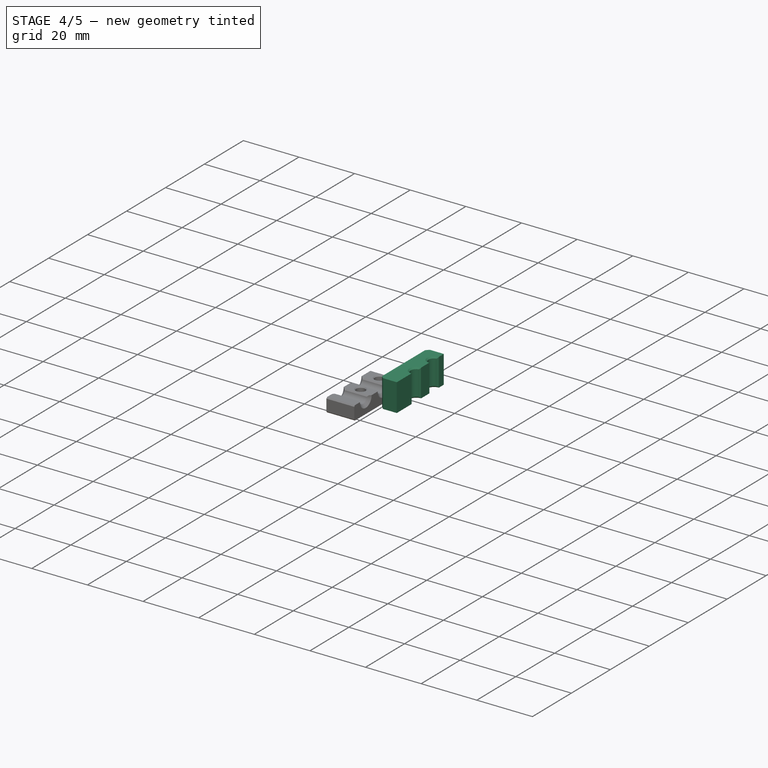
[diagram: stage 4 of 5 — iso view after this stage's code; geometry added in this stage tinted green]
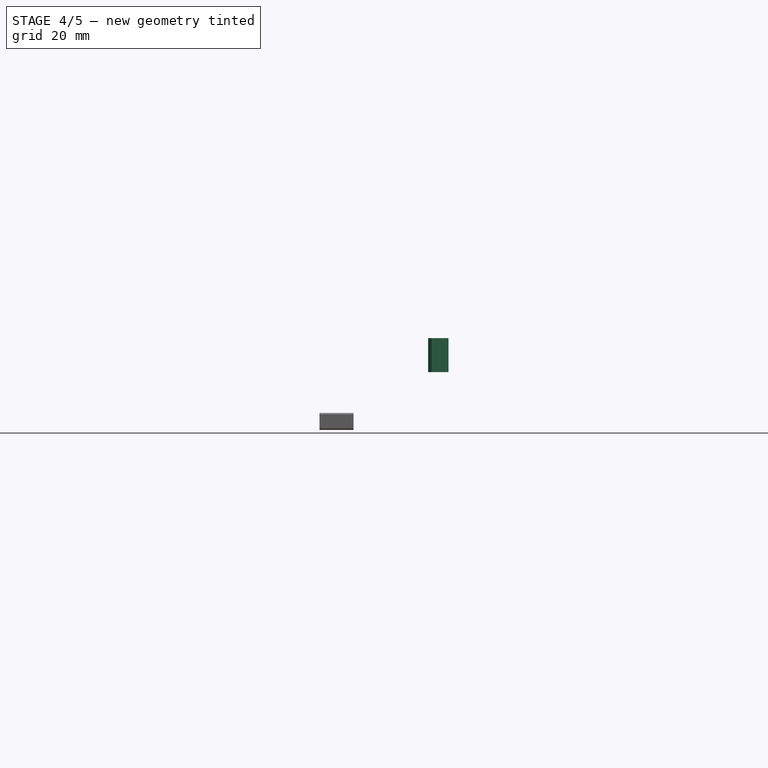
[diagram: stage 4 of 5 — front view after this stage's code; geometry added in this stage tinted green]
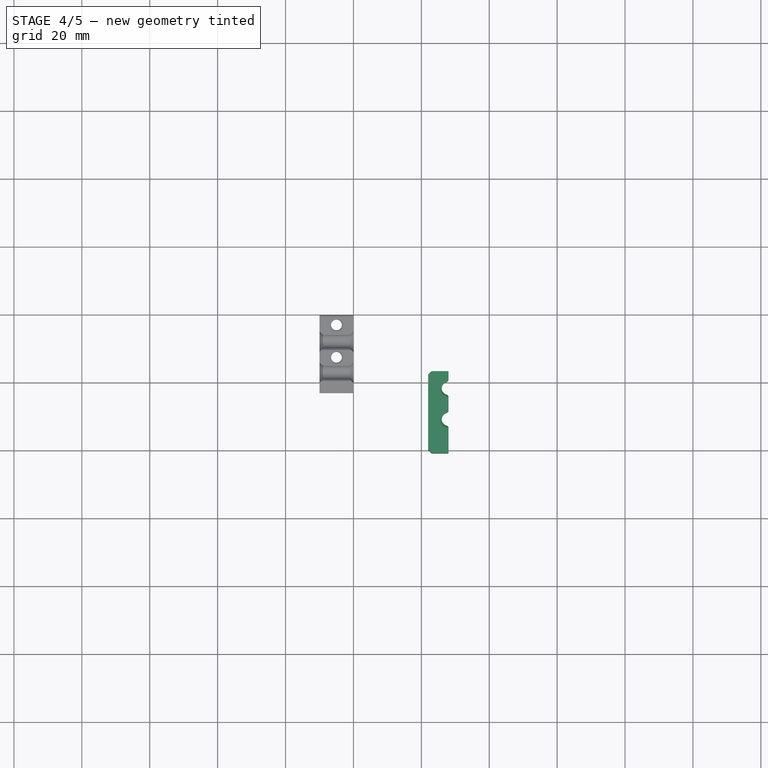
[diagram: stage 4 of 5 — top view after this stage's code; geometry added in this stage tinted green]
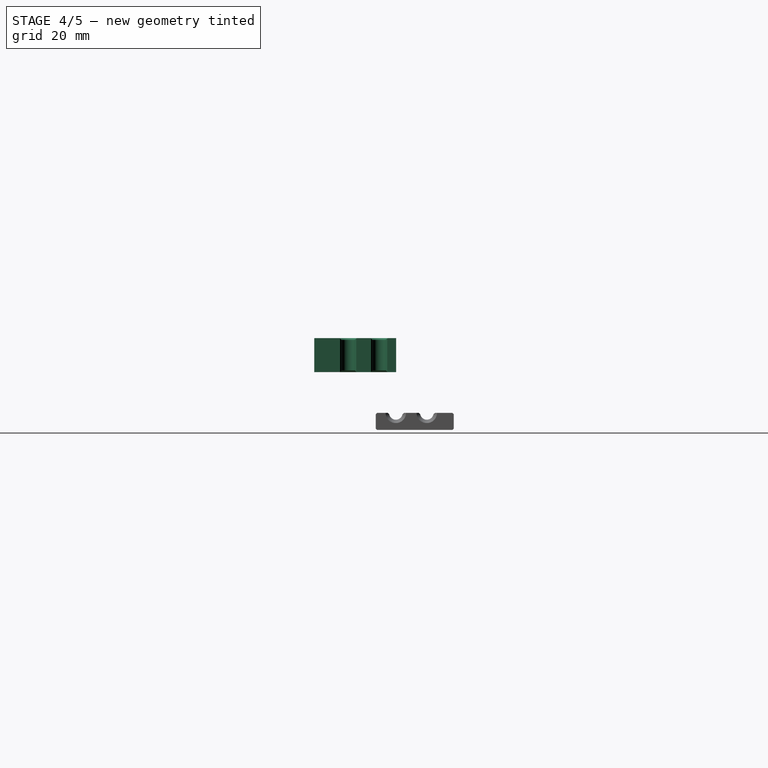
[diagram: stage 4 of 5 — right view after this stage's code; geometry added in this stage tinted green]
FEATURE [PartDesign::Fillet] Fillet004
  AddSubType = 0
  Base = -> Fillet003 [Edge41]
  BaseFeature = -> Fillet003
  FixShape = 1
  InvalidShape = false
  NewSolid = false
  Radius = 4
  Refine = true
  SupportTransform = false
  Suppress = false
  TreeRank = 64
  UseAllEdges = false
  ValidateShape = false
FEATURE [PartDesign::Body] Body002  label="SupportServo"
  AutoGroupSolids = false
  ClaimAllChildren = false
  ExportMode = 0
  FixShape = 1
  Group = -> [Binder001,DatumPlane,Sketch013,Pad005,Mirrored,Fillet009,Fillet010,Sketch019,Pocket011]
  InvalidShape = false
  Origin = -> Origin002
  SingleSolid = true
  Tip = -> Pocket011
  TreeRank = 75
  ValidateShape = false
  _ExportChildren = -> [Binder001,DatumPlane,Pad005,Mirrored,Fillet009,Fillet010,Pocket011]
  _GroupVersion = 1
FEATURE [TechDraw::DrawSVGTemplate] Template
  Height = 210
  Orientation = 1
  Template = <path>
  TreeRank = 161
  Width = 297
FEATURE [TechDraw::DrawProjGroupItem] ProjItem  label="Front"
  CoarseView = false
  Direction = (0,1,0)
  Focus = 100
  HardHidden = false
  IsoCount = 0
  IsoHidden = false
  IsoVisible = false
  LockPosition = true
  Perspective = false
  Rotation = 0
  RotationVector = (-1,0,0)
  ScaleType = 2
  ScrubCount = 0
  SeamHidden = false
  SeamVisible = false
  SmoothHidden = false
  SmoothVisible = false
  Source = -> [Pocket011]
  TreeRank = 164
  Type = 0
  X = 0
  XDirection = (-1,0,0)
  Y = 0
FEATURE [TechDraw::DrawProjGroup] ProjGroup
  Anchor = -> ProjItem
  AutoDistribute = true
  LockPosition = false
  ProjectionType = 0
  Rotation = 0
  ScaleType = 0
  Source = -> [Pocket011]
  TreeRank = 165
  Views = -> [ProjItem]
  X = 56.5385
  Y = 140.195
  spacingX = 15
  spacingY = 15
FEATURE [TechDraw::DrawPage] Page  label="Laser3mm - SupportServo"
  KeepUpdated = true
  NextBalloonIndex = 1
  ProjectionType = 0
  Template = -> Template
  TreeRank = 162
  Views = -> [ProjGroup]
FEATURE [Part::Feature] Solid003  label="V623ZZ-intern"
  FixShape = 1
  InvalidShape = false
  TreeRank = 176
  ValidateShape = false
  shape: bbox 8 x 4 x 8 mm, 8 faces (baked)
FEATURE [Part::Feature] Solid004  label="V623ZZ-extern"
  FixShape = 1
  InvalidShape = false
  TreeRank = 177
  ValidateShape = false
  shape: bbox 12 x 4 x 12 mm, 7 faces (baked)
FEATURE [App::Part] Part003  label="V623ZZ"
  ClaimAllChildren = false
  ExportMode = 1
  Group = -> [Solid003,Solid004]
  Origin = -> Origin007
  Placement = pos=(23,-33.1,5) rot=(0,0,1;0rad)
  TreeRank = 179
  _ExportChildren = -> [Solid003,Solid004]
  _GroupVersion = 1
FEATURE [App::Link] Link001  label="Link001(V623ZZ)"
  AutoLinkLabel = true
  AutoPlacement = true
  LinkPlacement = pos=(23,-24.1,5) rot=(0,0,1;0rad)
  LinkedObject = -> Part003
  Placement = pos=(23,-24.1,5) rot=(0,0,1;0rad)
  SyncGroupVisibility = false
  TreeRank = 180
  _LinkVersion = 1
FEATURE [Sketcher::SketchObject] Sketch020
  ArcFitTolerance = 1e-06
  AttachmentSupport = -> [Fillet004]
  ExternalBSplineMaxDegree = 5
  ExternalBSplineTolerance = 0.0001
  ExternalGeometry = -> [Fillet004]
  FixShape = 1
  FullyConstrained = true
  InternalTolerance = 1e-06
  InvalidShape = false
  MakeInternals = false
  MapMode = 5
  Placement = pos=(0,0,12) rot=(0,0,1;0rad)
  Support = -> [Fillet004]
  TreeRank = 213
  ValidateShape = false
  sketch-geometry (4):
    g0: LineSegment StartX=34 StartY=-41.1127 StartZ=0 EndX=28 EndY=-41.1127 EndZ=0
    g1: LineSegment StartX=28 StartY=-41.1127 StartZ=0 EndX=28 EndY=-17 EndZ=0
    g2: LineSegment StartX=28 StartY=-17 StartZ=0 EndX=34 EndY=-17 EndZ=0
    g3: LineSegment StartX=34 StartY=-17 StartZ=0 EndX=34 EndY=-41.1127 EndZ=0
  constraints (11):
    c: Coincident(g0,g1)
    c: Coincident(g1,g2)
    c: Horizontal(g0)
    c: Horizontal(g2)
    c: Vertical(g1)
    c: Coincident(g0,g-3)
    c: Coincident(g3,g2)
    c: Coincident(g3,g0)
    c: Vertical(g3)
    c: PointOnObject(g-5,g1)
    c: DistanceY(g-4,g1) = 3
FEATURE [Part::SubShapeBinder] Import003  label="Import003(Chamfer003)"
  BindCopyOnChange = 0
  BindMode = 0
  ClaimChildren = false
  Context = -> <external main-actuator.FCStd>#Part [Part013.Part003.Link019.Part002.Body001.Import003.]
  EdgeTolerance = 1e-06
  FillStyle = 0
  FixShape = 1
  Fuse = false
  InvalidShape = false
  MakeFace = false
  MergeEdges = true
  OffsetFill = false
  OffsetIntersection = false
  OffsetJoinType = 0
  OffsetOpenResult = false
  Outline = false
  PartialLoad = false
  Relative = true
  SplitEdges = false
  Support = -> [Body[Chamfer003.]]
  TightBound = false
  TreeRank = 212
  ValidateShape = false
  _Version = 8
FEATURE [PartDesign::Pad] Pad007
  AddSubType = 0
  AlongSketchNormal = false
  AutoTaperInnerAngle = true
  BaseFeature = -> Fillet004
  CheckUpToFaceLimits = true
  ClaimChildren = false
  Direction = (0,0,1)
  Fit = 0
  FitJoin = 0
  FixShape = 1
  InnerFit = 0
  InnerFitJoin = 0
  InvalidShape = false
  Length = 10
  Length2 = 10
  Linearize = true
  NewSolid = false
  Profile = -> Sketch020
  ReferenceAxis = -> Sketch020 [N_Axis]
  Refine = true
  Suppress = false
  TaperInnerAngle = 0
  TaperInnerAngleRev = 0
  TreeRank = 214
  Type = 0
  ValidateShape = false
  _ProfileBasedVersion = 1
FEATURE [Sketcher::SketchObject] Sketch021
  ArcFitTolerance = 1e-06
  AttachmentSupport = -> [Pad007]
  ExternalBSplineMaxDegree = 5
  ExternalBSplineTolerance = 0.0001
  ExternalGeometry = -> [Pad007]
  FixShape = 1
  FullyConstrained = true
  InternalTolerance = 1e-06
  InvalidShape = false
  MakeInternals = false
  MapMode = 5
  Placement = pos=(0,-33.1127,0) rot=(0,0.707107,0.707107;3.14159rad)
  Support = -> [Pad007]
  TreeRank = 215
  ValidateShape = false
  sketch-geometry (7):
    g0: LineSegment StartX=-28 StartY=12 StartZ=0 EndX=-28 EndY=9.15331 EndZ=0
    g1: LineSegment StartX=-28 StartY=12 StartZ=0 EndX=-34 EndY=12 EndZ=0
    g2: LineSegment StartX=-34 StartY=12 StartZ=0 EndX=-34 EndY=-5 EndZ=0
    g3: LineSegment StartX=-23 StartY=-9 StartZ=0 EndX=-23 EndY=-1.5 EndZ=0
    g4: ArcOfCircle CenterX=-23 CenterY=5 CenterZ=0 NormalX=0 NormalY=0 NormalZ=1 AngleXU=0 Radius=6.5 StartAngle=2.44843 EndAngle=4.71239
    g5: ArcOfCircle CenterX=-30 CenterY=-5 CenterZ=0 NormalX=0 NormalY=0 NormalZ=1 AngleXU=0 Radius=4 StartAngle=3.14159 EndAngle=4.71239
    g6: LineSegment StartX=-30 StartY=-9 StartZ=0 EndX=-23 EndY=-9 EndZ=0
  constraints (17):
    c: Coincident(g0,g-4)
    c: Coincident(g0,g-5)
    c: Coincident(g1,g0)
    c: Coincident(g1,g-3)
    c: Coincident(g2,g1)
    c: Coincident(g2,g-6)
    c: Vertical(g3)
    c: Coincident(g4,g-5)
    c: Coincident(g4,g3)
    c: PointOnObject(g4,g3)
    c: Coincident(g0,g4)
    c: PointOnObject(g3,g-7)
    c: Coincident(g5,g-6)
    c: Coincident(g5,g2)
    c: Coincident(g6,g5)
    c: Coincident(g6,g3)
    c: Horizontal(g6)
FEATURE [PartDesign::Pad] Pad008
  AddSubType = 0
  AlongSketchNormal = false
  AutoTaperInnerAngle = true
  BaseFeature = -> Pad007
  CheckUpToFaceLimits = true
  ClaimChildren = false
  Direction = (0,1,-2e-16)
  Fit = 0
  FitJoin = 0
  FixShape = 1
  InnerFit = 0
  InnerFitJoin = 0
  InvalidShape = false
  Length = 10
  Length2 = 10
  Linearize = true
  NewSolid = false
  Profile = -> Sketch021
  ReferenceAxis = -> Sketch021 [N_Axis]
  Refine = true
  Suppress = false
  TaperInnerAngle = 0
  TaperInnerAngleRev = 0
  TreeRank = 216
  Type = 3
  UpToFace = -> Pad007 [Face19]
  ValidateShape = false
  _ProfileBasedVersion = 1
FEATURE [PartDesign::Pad] Pad009
  AddSubType = 0
  AlongSketchNormal = false
  AutoTaperInnerAngle = true
  BaseFeature = -> Pad008
  CheckUpToFaceLimits = true
  ClaimChildren = false
  Direction = (-1,0,0)
  Fit = 0
  FitJoin = 0
  FixShape = 1
  InnerFit = 0
  InnerFitJoin = 0
  InvalidShape = false
  Length = 3
  Length2 = 10
  Linearize = true
  NewSolid = false
  Profile = -> Pad008 [Face21]
  Refine = true
  Suppress = false
  TaperInnerAngle = 0
  TaperInnerAngleRev = 0
  TreeRank = 217
  Type = 0
  ValidateShape = false
  _ProfileBasedVersion = 1
FEATURE [Sketcher::SketchObject] Sketch022
  ArcFitTolerance = 1e-06
  AttachmentSupport = -> [Pad009]
  ExternalBSplineMaxDegree = 5
  ExternalBSplineTolerance = 0.0001
  ExternalGeometry = -> [Pad009,Import003]
  FixShape = 1
  FullyConstrained = true
  InternalTolerance = 1e-06
  InvalidShape = false
  MakeInternals = false
  MapMode = 5
  Placement = pos=(0,0,22) rot=(0,0,1;0rad)
  Support = -> [Pad009]
  TreeRank = 218
  ValidateShape = false
  sketch-geometry (4):
    g0: Circle CenterX=28 CenterY=-22 CenterZ=0 NormalX=0 NormalY=0 NormalZ=1 AngleXU=0 Radius=2
    g1: Circle CenterX=28 CenterY=-31.1127 CenterZ=0 NormalX=0 NormalY=0 NormalZ=1 AngleXU=0 Radius=2
    g2: LineSegment [constr] StartX=11.4 StartY=-22 StartZ=0 EndX=28 EndY=-22 EndZ=0
    g3: LineSegment [constr] StartX=28 StartY=-31.1127 StartZ=0 EndX=11.4 EndY=-31.1127 EndZ=0
  constraints (10):
    c: PointOnObject(g0,g-3)
    c: PointOnObject(g1,g-3)
    c: Coincident(g2,g0)
    c: Horizontal(g2)
    c: Coincident(g3,g1)
    c: Horizontal(g3)
    c: Symmetric(g-5,g-5,g2)
    c: Symmetric(g-4,g-4,g3)
    c: Equal(g1,g0)
    c: Diameter(g1) = 4
FEATURE [PartDesign::Fillet] Fillet011
  AddSubType = 0
  Base = -> Pad009 [Edge26]
  BaseFeature = -> Pad009
  FixShape = 1
  InvalidShape = false
  NewSolid = false
  Radius = 5
  Refine = true
  SupportTransform = false
  Suppress = false
  TreeRank = 219
  UseAllEdges = false
  ValidateShape = false
FEATURE [PartDesign::SubtractivePipe] Pipe
  AddSubType = 1
  AuxilleryCurvelinear = true
  AuxillerySpineTangent = false
  BaseFeature = -> Fillet011
  Binormal = (0,0,0)
  ClaimChildren = false
  Fit = 0
  FitJoin = 0
  FixShape = 1
  InnerFit = 0
  InnerFitJoin = 0
  InvalidShape = false
  Linearize = true
  Mode = 0
  MoveProfile = false
  NewSolid = false
  Profile = -> Sketch022
  Refine = true
  RotateProfile = false
  Spine = -> Fillet011 [Edge1,Edge7,Edge9,Edge11]
  SpineTangent = false
  Suppress = false
  Transformation = 0
  Transition = 1
  TreeRank = 220
  ValidateShape = false
  _ProfileBasedVersion = 2
FEATURE [PartDesign::Chamfer] Chamfer012
  AddSubType = 0
  Angle = 45
  Base = -> Pipe [Edge34,Edge37,Edge18,Edge15]
  BaseFeature = -> Pipe
  ChamferType = 0
  FixShape = 1
  FlipDirection = false
  InvalidShape = false
  NewSolid = false
  Refine = true
  Size = 0.5
  Size2 = 1
  SupportTransform = false
  Suppress = false
  TreeRank = 221
  UseAllEdges = false
  ValidateShape = false
FEATURE [PartDesign::Chamfer] Chamfer013
  AddSubType = 0
  Angle = 45
  Base = -> Chamfer012 [Edge3,Edge4,Edge24,Edge52,Edge30]
  BaseFeature = -> Chamfer012
  ChamferType = 0
  FixShape = 1
  FlipDirection = false
  InvalidShape = false
  NewSolid = false
  Refine = true
  Size = 0.4
  Size2 = 1
  SupportTransform = false
  Suppress = false
  TreeRank = 222
  UseAllEdges = false
  ValidateShape = false
FEATURE [PartDesign::SubShapeBinder] Binder003  label="Binder003(Chamfer013)"
  BindCopyOnChange = 0
  BindMode = 0
  ClaimChildren = false
  Context = -> Part004 [Part002.Body004.Binder003.]
  EdgeTolerance = 1e-06
  FillStyle = 0
  FixShape = 1
  Fuse = false
  InvalidShape = false
  MakeFace = true
  MergeEdges = true
  OffsetFill = false
  OffsetIntersection = false
  OffsetJoinType = 0
  OffsetOpenResult = false
  Outline = false
  PartialLoad = false
  Relative = true
  SplitEdges = false
  Support = -> [Body001[Chamfer013.Face2]]
  TightBound = false
  TreeRank = 233
  ValidateShape = false
  _Version = 8
FEATURE [Part::SubShapeBinder] Import004  label="Import004(Chamfer013)"
  BindCopyOnChange = 0
  BindMode = 0
  ClaimChildren = false
  Context = -> Part004 [Part002.Body004.Import004.]
  EdgeTolerance = 1e-06
  FillStyle = 0
  FixShape = 1
  Fuse = false
  InvalidShape = false
  MakeFace = false
  MergeEdges = true
  OffsetFill = false
  OffsetIntersection = false
  OffsetJoinType = 0
  OffsetOpenResult = false
  Outline = false
  PartialLoad = false
  Relative = true
  SplitEdges = false
  Support = -> [Body001[Chamfer013.]]
  TightBound = false
  TreeRank = 235
  ValidateShape = false
  _Version = 8
FEATURE [Sketcher::SketchObject] Sketch023
  ArcFitTolerance = 1e-06
  AttachmentSupport = -> [Binder003]
  ExternalBSplineMaxDegree = 5
  ExternalBSplineTolerance = 0.0001
  ExternalGeometry = -> [Import004]
  FixShape = 1
  FullyConstrained = true
  InternalTolerance = 1e-06
  InvalidShape = false
  MakeInternals = false
  MapMode = 5
  Placement = pos=(0,0,22) rot=(0,0,1;0rad)
  Support = -> [Binder003]
  TreeRank = 234
  ValidateShape = false
  sketch-geometry (9):
    g0: LineSegment StartX=28 StartY=-41.1127 StartZ=0 EndX=22 EndY=-41.1127 EndZ=0
    g1: LineSegment StartX=22 StartY=-41.1127 StartZ=0 EndX=22 EndY=-17 EndZ=0
    g2: LineSegment StartX=22 StartY=-17 StartZ=0 EndX=28 EndY=-17 EndZ=0
    g3: LineSegment [constr] StartX=28 StartY=-17 StartZ=0 EndX=28 EndY=-41.1127 EndZ=0
    g4: ArcOfCircle CenterX=28 CenterY=-22 CenterZ=0 NormalX=0 NormalY=0 NormalZ=1 AngleXU=0 Radius=2 StartAngle=1.5708 EndAngle=4.71239
    g5: ArcOfCircle CenterX=28 CenterY=-31.1127 CenterZ=0 NormalX=0 NormalY=0 NormalZ=1 AngleXU=0 Radius=2 StartAngle=1.5708 EndAngle=4.71239
    g6: LineSegment StartX=28 StartY=-24 StartZ=0 EndX=28 EndY=-29.1127 EndZ=0
    g7: LineSegment StartX=28 StartY=-20 StartZ=0 EndX=28 EndY=-17 EndZ=0
    g8: LineSegment StartX=28 StartY=-33.1127 StartZ=0 EndX=28 EndY=-41.1127 EndZ=0
  constraints (25):
    c: Coincident(g0,g1)
    c: Coincident(g1,g2)
    c: Coincident(g2,g3)
    c: Coincident(g3,g0)
    c: Horizontal(g0)
    c: Horizontal(g2)
    c: Vertical(g1)
    c: Vertical(g3)
    c: Coincident(g0,g-5)
    c: Equal(g-5,g0)
    c: PointOnObject(g2,g-3)
    c: Coincident(g4,g-6)
    c: PointOnObject(g4,g3)
    c: PointOnObject(g4,g3)
    c: Coincident(g5,g-7)
    c: PointOnObject(g5,g3)
    c: PointOnObject(g5,g3)
    c: Coincident(g6,g4)
    c: Coincident(g6,g5)
    c: Coincident(g7,g4)
    c: Coincident(g7,g2)
    c: Coincident(g8,g5)
    c: Coincident(g8,g0)
    c: Equal(g4,g5)
    c: Radius(g4) = 2
FEATURE [PartDesign::Pad] Pad010
  AddSubType = 0
  AlongSketchNormal = false
  AutoTaperInnerAngle = true
  CheckUpToFaceLimits = true
  ClaimChildren = false
  Direction = (0,0,1)
  Fit = 0
  FitJoin = 0
  FixShape = 1
  InnerFit = 0
  InnerFitJoin = 0
  InvalidShape = false
  Length = 10
  Length2 = 10
  Linearize = true
  NewSolid = false
  Profile = -> Sketch023
  ReferenceAxis = -> Sketch023 [N_Axis]
  Refine = true
  Reversed = true
  Suppress = false
  TaperInnerAngle = 0
  TaperInnerAngleRev = 0
  TreeRank = 236
  Type = 0
  ValidateShape = false
  _ProfileBasedVersion = 1
FEATURE [PartDesign::Chamfer] Chamfer014
  AddSubType = 0
  Angle = 45
  Base = -> Pad010 [Edge5,Edge2]
  BaseFeature = -> Pad010
  ChamferType = 0
  FixShape = 1
  FlipDirection = false
  InvalidShape = false
  NewSolid = false
  Refine = true
  Size = 1
  Size2 = 1
  SupportTransform = false
  Suppress = false
  TreeRank = 237
  UseAllEdges = false
  ValidateShape = false
FEATURE [PartDesign::Chamfer] Chamfer015
  AddSubType = 0
  Angle = 45
  Base = -> Chamfer014 [Edge8,Edge19,Edge23,Edge12]
  BaseFeature = -> Chamfer014
  ChamferType = 0
  FixShape = 1
  FlipDirection = false
  InvalidShape = false
  NewSolid = false
  Refine = true
  Size = 0.5
  Size2 = 1
  SupportTransform = false
  Suppress = false
  TreeRank = 238
  UseAllEdges = false
  ValidateShape = false
FEATURE [PartDesign::Chamfer] Chamfer016
  AddSubType = 0
  Angle = 45
  Base = -> Chamfer015 [Edge11,Edge25,Edge20,Edge32]
  BaseFeature = -> Chamfer015
  ChamferType = 0
  FixShape = 1
  FlipDirection = false
  InvalidShape = false
  NewSolid = false
  Refine = true
  Size = 0.4
  Size2 = 1
  SupportTransform = false
  Suppress = false
  TreeRank = 239
  UseAllEdges = false
  ValidateShape = false
FEATURE [Sketcher::SketchObject] Sketch024
  ArcFitTolerance = 1e-06
  AttachmentSupport = -> [Chamfer013]
  ExternalBSplineMaxDegree = 5
  ExternalBSplineTolerance = 0.0001
  ExternalGeometry = -> [Chamfer013]
  FixShape = 1
  FullyConstrained = true
  InternalTolerance = 1e-06
  InvalidShape = false
  MakeInternals = false
  MapMode = 5
  Placement = pos=(28,0,0) rot=(0.57735,-0.57735,-0.57735;2.0944rad)
  Support = -> [Chamfer013]
  TreeRank = 240
  ValidateShape = false
  sketch-geometry (5):
    g0: Circle CenterX=26.5563 CenterY=17 CenterZ=0 NormalX=0 NormalY=0 NormalZ=1 AngleXU=0 Radius=1.6
    g1: Circle CenterX=37.3627 CenterY=17 CenterZ=0 NormalX=0 NormalY=0 NormalZ=1 AngleXU=0 Radius=1.6
    g2: LineSegment [constr] StartX=26.5563 StartY=17 StartZ=0 EndX=26.5563 EndY=22 EndZ=0
    g3: LineSegment [constr] StartX=26.5563 StartY=17 StartZ=0 EndX=37.3627 EndY=17 EndZ=0
    g4: LineSegment [constr] StartX=33.6127 StartY=22 StartZ=0 EndX=41.1127 EndY=12 EndZ=0
  constraints (11):
    c: Equal(g1,g0)
    c: Diameter(g1) = 3.2
    c: Horizontal(g1,g0)
    c: Coincident(g2,g0)
    c: Vertical(g2)
    c: Symmetric(g-4,g-4,g2)
    c: Coincident(g3,g0)
    c: Coincident(g3,g1)
    c: Coincident(g4,g-5)
    c: Coincident(g4,g-3)
    c: Symmetric(g-5,g-3,g1)
FEATURE [PartDesign::Pocket] Pocket012
  AddSubType = 1
  AlongSketchNormal = false
  AutoTaperInnerAngle = true
  BaseFeature = -> Chamfer013
  CheckUpToFaceLimits = true
  ClaimChildren = false
  Direction = (1,0,0)
  Fit = 0
  FitJoin = 0
  FixShape = 1
  InnerFit = 0
  InnerFitJoin = 0
  InvalidShape = false
  Length = 5
  Length2 = 10
  Linearize = true
  NewSolid = false
  Profile = -> Sketch024
  ReferenceAxis = -> Sketch024 [N_Axis]
  Refine = true
  Suppress = false
  TaperInnerAngle = 0
  TaperInnerAngleRev = 0
  TreeRank = 241
  Type = 1
  ValidateShape = false
  _ProfileBasedVersion = 1
  _Version = 1
FEATURE [PartDesign::Body] Body004  label="Bride"
  AutoGroupSolids = false
  ClaimAllChildren = false
  ExportMode = 0
  FixShape = 1
  Group = -> [Binder003,Sketch023,Import004,Pad010,Chamfer014,Chamfer015,Chamfer016,Binder004,Sketch025,Pocket013,Chamfer017]
  InvalidShape = false
  Origin = -> Origin009
  SingleSolid = true
  Tip = -> Chamfer017
  TreeRank = 232
  ValidateShape = false
  _ExportChildren = -> [Binder003,Import004,Pad010,Chamfer014,Chamfer015,Chamfer016,Binder004,Pocket013,Chamfer017]
  _GroupVersion = 1
FEATURE [PartDesign::Chamfer] Chamfer018
  AddSubType = 0
  Angle = 45
  Base = -> Pocket012 [Edge64,Edge53,Edge38,Edge37]
  BaseFeature = -> Pocket012
  ChamferType = 0
  FixShape = 1
  FlipDirection = false
  InvalidShape = false
  NewSolid = false
  Refine = true
  Size = 0.4
  Size2 = 1
  SupportTransform = false
  Suppress = false
  TreeRank = 246
  UseAllEdges = false
  ValidateShape = false
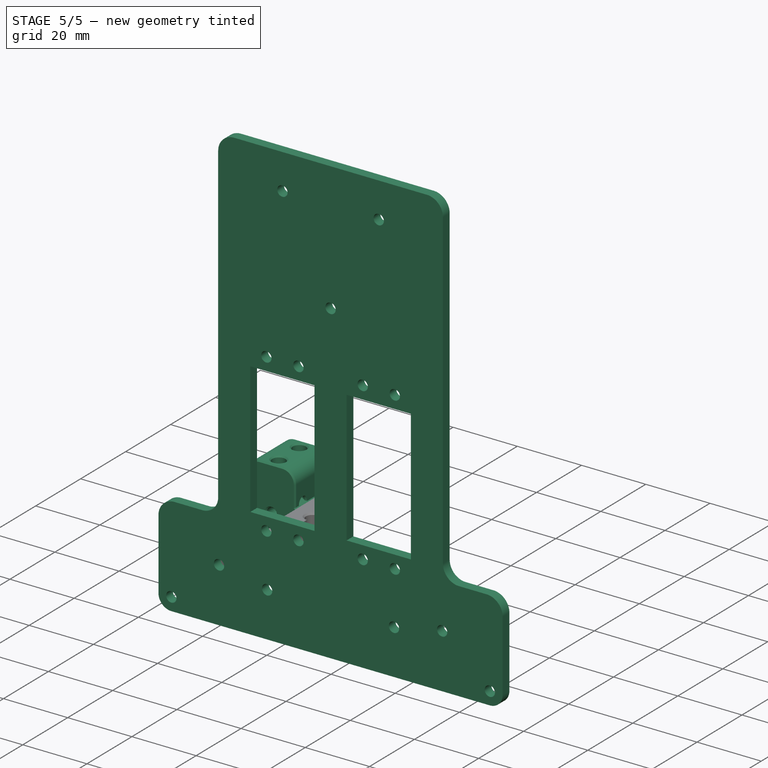
[diagram: stage 5 of 5 — iso view after this stage's code; geometry added in this stage tinted green]
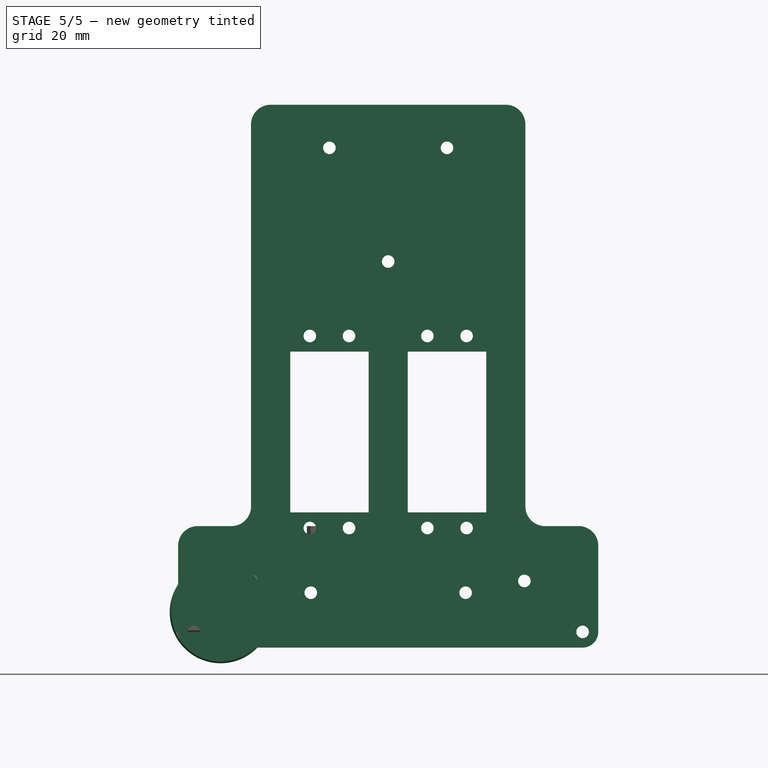
[diagram: stage 5 of 5 — front view after this stage's code; geometry added in this stage tinted green]
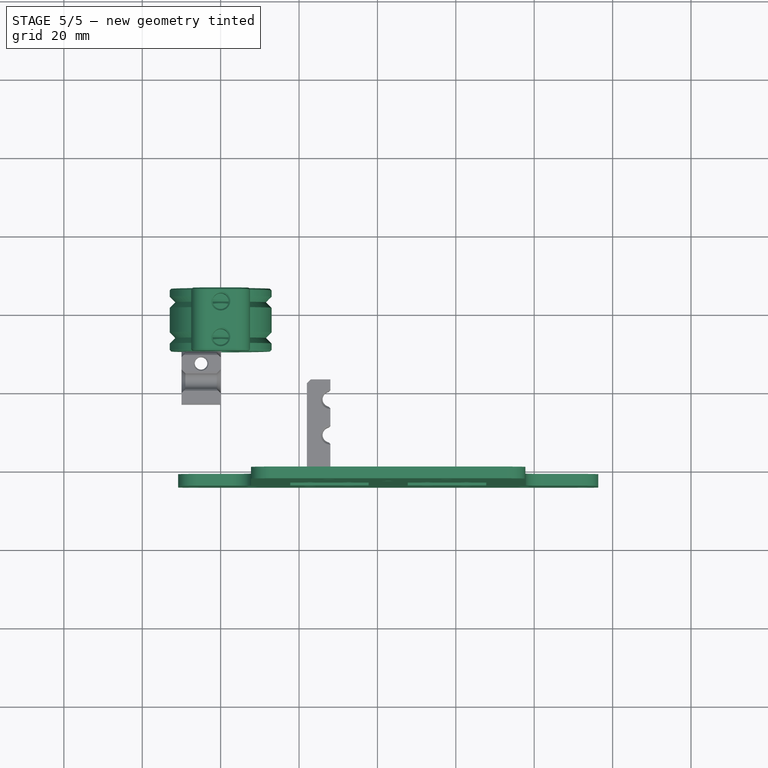
[diagram: stage 5 of 5 — top view after this stage's code; geometry added in this stage tinted green]
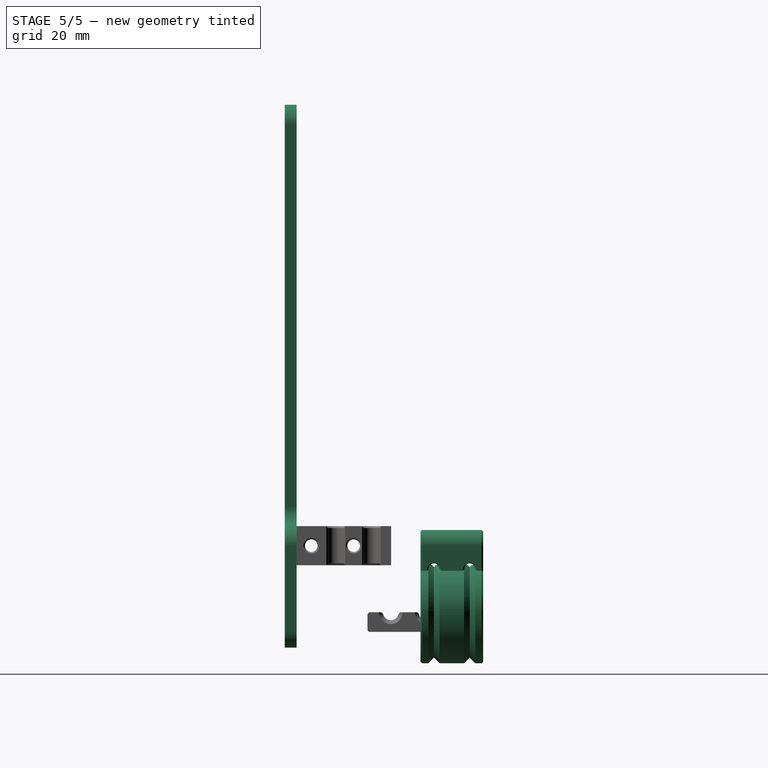
[diagram: stage 5 of 5 — right view after this stage's code; geometry added in this stage tinted green]
FEATURE [PartDesign::SubShapeBinder] Binder001  label="Binder001(Pocket007)"
  BindCopyOnChange = 0
  BindMode = 0
  ClaimChildren = false
  Context = -> Part004 [Part002.Body002.Binder001.]
  EdgeTolerance = 1e-06
  FillStyle = 0
  FixShape = 1
  Fuse = false
  InvalidShape = false
  MakeFace = true
  MergeEdges = true
  OffsetFill = false
  OffsetIntersection = false
  OffsetJoinType = 0
  OffsetOpenResult = false
  Outline = false
  PartialLoad = false
  Relative = true
  SplitEdges = false
  Support = -> [Body001[Pocket007.Face10]]
  TightBound = false
  TreeRank = 76
  ValidateShape = false
  _Version = 8
FEATURE [PartDesign::Plane] DatumPlane
  AttachmentSupport = -> [Binder001]
  FixShape = 1
  InvalidShape = false
  Length = 107.2
  MapMode = 5
  MinimumLength = 10
  MinimumWidth = 10
  Placement = pos=(0,-41.1127,0) rot=(1,0,0;1.5708rad)
  ResizeMode = 0
  Support = -> [Binder001]
  TreeRank = 77
  ValidateShape = false
  Width = 138.5
FEATURE [Sketcher::SketchObject] Sketch013
  ArcFitTolerance = 1e-06
  AttachmentSupport = -> [DatumPlane]
  ExternalBSplineMaxDegree = 5
  ExternalBSplineTolerance = 0.0001
  ExternalGeometry = -> [Binder001]
  FixShape = 1
  FullyConstrained = true
  InternalTolerance = 1e-06
  InvalidShape = false
  MakeInternals = false
  MapMode = 5
  Placement = pos=(0,-41.1127,0) rot=(1,0,0;1.5708rad)
  Support = -> [DatumPlane]
  TreeRank = 78
  ValidateShape = false
  sketch-geometry (25):
    g0: LineSegment [constr] StartX=37.75 StartY=129.5 StartZ=0 EndX=37.75 EndY=25.5 EndZ=0
    g1: LineSegment [constr] StartX=37.75 StartY=25.5 StartZ=0 EndX=17.75 EndY=25.5 EndZ=0
    g2: LineSegment [constr] StartX=17.75 StartY=25.5 StartZ=0 EndX=17.75 EndY=129.5 EndZ=0
    g3: Circle CenterX=22.75 CenterY=21.5 CenterZ=0 NormalX=0 NormalY=0 NormalZ=1 AngleXU=0 Radius=1.6
    g4: Circle CenterX=32.75 CenterY=21.5 CenterZ=0 NormalX=0 NormalY=0 NormalZ=1 AngleXU=0 Radius=1.6
    g5: LineSegment StartX=42.75 StartY=129.5 StartZ=0 EndX=42.75 EndY=-9 EndZ=0
    g6: LineSegment StartX=42.75 StartY=-9 StartZ=0 EndX=-10.85 EndY=-9 EndZ=0
    g7: LineSegment [constr] StartX=-10.85 StartY=-9 StartZ=0 EndX=-10.85 EndY=129.5 EndZ=0
    g8: LineSegment [constr] StartX=-10.85 StartY=129.5 StartZ=0 EndX=17.75 EndY=129.5 EndZ=0
    g9: Circle CenterX=8 CenterY=8 CenterZ=0 NormalX=0 NormalY=0 NormalZ=1 AngleXU=0 Radius=1.6
    g10: Circle CenterX=-6.85 CenterY=-5 CenterZ=0 NormalX=0 NormalY=0 NormalZ=1 AngleXU=0 Radius=1.6
    g11: Circle CenterX=23 CenterY=5 CenterZ=0 NormalX=0 NormalY=0 NormalZ=1 AngleXU=0 Radius=1.6
    g12: LineSegment [constr] StartX=22.75 StartY=21.5 StartZ=0 EndX=32.75 EndY=21.5 EndZ=0
    g13: LineSegment [constr] StartX=27.75 StartY=25.5 StartZ=0 EndX=27.75 EndY=21.5 EndZ=0
    g14: LineSegment StartX=17.75 StartY=25.5 StartZ=0 EndX=37.75 EndY=25.5 EndZ=0
    g15: LineSegment StartX=37.75 StartY=25.5 StartZ=0 EndX=37.75 EndY=66.5 EndZ=0
    g16: LineSegment StartX=37.75 StartY=66.5 StartZ=0 EndX=17.75 EndY=66.5 EndZ=0
    g17: LineSegment StartX=17.75 StartY=66.5 StartZ=0 EndX=17.75 EndY=25.5 EndZ=0
    g18: Circle CenterX=22.75 CenterY=70.5 CenterZ=0 NormalX=0 NormalY=0 NormalZ=1 AngleXU=0 Radius=1.6
    g19: Circle CenterX=32.75 CenterY=70.5 CenterZ=0 NormalX=0 NormalY=0 NormalZ=1 AngleXU=0 Radius=1.6
    g20: LineSegment [constr] StartX=17.75 StartY=46 StartZ=0 EndX=37.75 EndY=46 EndZ=0
    g21: LineSegment StartX=-10.85 StartY=-9 StartZ=0 EndX=-10.85 EndY=22 EndZ=0
    g22: LineSegment StartX=-10.85 StartY=22 StartZ=0 EndX=7.75 EndY=22 EndZ=0
    g23: LineSegment StartX=7.75 StartY=22 StartZ=0 EndX=7.75 EndY=129.5 EndZ=0
    g24: LineSegment StartX=7.75 StartY=129.5 StartZ=0 EndX=42.75 EndY=129.5 EndZ=0
  constraints (66):
    c: Coincident(g0,g1)
    c: Coincident(g1,g2)
    c: Horizontal(g1)
    c: Vertical(g0)
    c: Vertical(g2)
    c: DistanceX(g2,g0) = 20
    c: Equal(g4,g3)
    c: Diameter(g4) = 3.2
    c: Vertical(g5)
    c: Coincident(g6,g5)
    c: Coincident(g6,g-5)
    c: Horizontal(g6)
    c: Coincident(g7,g6)
    c: Vertical(g7)
    c: Coincident(g8,g7)
    c: Coincident(g8,g2)
    c: Horizontal(g8)
    c: Coincident(g9,g-3)
    c: Coincident(g10,g-4)
    c: Equal(g10,g9)
    c: Diameter(g10) = 3.2
    c: Coincident(g11,g-7)
    c: Equal(g11,g9)
    c: DistanceX(g3,g4) = 10
    c: DistanceY(g4,g0) = 4
    c: DistanceY(g11,g0) = 20.5
    c: DistanceX(g0,g5) = 5
    c: Coincident(g12,g3)
    c: Coincident(g12,g4)
    c: Horizontal(g12)
    c: Symmetric(g3,g4,g13)
    c: Symmetric(g1,g0,g13)
    c: Vertical(g13)
    c: DistanceX(g11,g13) = 4.75
    c: Coincident(g14,g15)
    c: Coincident(g15,g16)
    c: Coincident(g16,g17)
    c: Coincident(g17,g14)
    c: Horizontal(g14)
    c: Horizontal(g16)
    c: Vertical(g15)
    c: Vertical(g17)
    c: Coincident(g14,g1)
    c: PointOnObject(g15,g0)
    c: DistanceY(g15,g15) = 41
    c: Equal(g18,g19)
    c: Equal(g19,g3)
    c: Horizontal(g18,g19)
    c: PointOnObject(g20,g17)
    c: Symmetric(g1,g15,g20)
    c: Symmetric(g4,g19,g20)
    c: Symmetric(g18,g3,g20)
    c: DistanceY(g15,g0) = 63
    c: Coincident(g21,g6)
    c: PointOnObject(g21,g7)
    c: Coincident(g21,g22)
    c: Horizontal(g22)
    c: Coincident(g22,g23)
    c: PointOnObject(g23,g8)
    c: Vertical(g23)
    c: DistanceY(g-5,g21) = 10
    c: Coincident(g24,g23)
    c: Coincident(g24,g5)
    c: Horizontal(g24)
    c: DistanceX(g23,g2) = 10
    c: PointOnObject(g0,g24)
FEATURE [PartDesign::Pad] Pad005
  AddSubType = 0
  AlongSketchNormal = false
  AutoTaperInnerAngle = true
  CheckUpToFaceLimits = true
  ClaimChildren = false
  Direction = (0,-1,2e-16)
  Fit = 0
  FitJoin = 0
  FixShape = 1
  InnerFit = 0
  InnerFitJoin = 0
  InvalidShape = false
  Length = 3
  Length2 = 10
  Linearize = true
  NewSolid = false
  Profile = -> Sketch013
  ReferenceAxis = -> Sketch013 [N_Axis]
  Refine = true
  Suppress = false
  TaperInnerAngle = 0
  TaperInnerAngleRev = 0
  TreeRank = 79
  Type = 0
  ValidateShape = false
  _ProfileBasedVersion = 1
FEATURE [Part::Feature] Solid  label="ServoPalonnier"
  FixShape = 1
  InvalidShape = false
  Placement = pos=(0,0,0) rot=(1,0,0;1.5708rad)
  TreeRank = 93
  ValidateShape = false
  shape: bbox 20 x 5.4 x 20 mm, 12 faces (baked)
FEATURE [Part::Feature] Solid001  label="ServoBody001"
  FixShape = 1
  InvalidShape = false
  TreeRank = 94
  ValidateShape = false
  shape: bbox 54 x 20 x 39 mm, 22 faces (baked)
FEATURE [Part::Feature] Solid002  label="ServoAxis001"
  FixShape = 1
  InvalidShape = false
  TreeRank = 95
  ValidateShape = false
  shape: bbox 6 x 6 x 10 mm, 4 faces (baked)
FEATURE [App::Part] Part  label="ServoMG996R001"
  ClaimAllChildren = false
  ExportMode = 1
  Group = -> [Solid001,Solid002]
  Origin = -> Origin003
  Placement = pos=(0,0,0) rot=(1,0,0;1.5708rad)
  TreeRank = 97
  _ExportChildren = -> [Solid001,Solid002]
  _GroupVersion = 1
FEATURE [PartDesign::SubShapeBinder] Binder002  label="Binder002(ServoPalonnier)"
  BindCopyOnChange = 0
  BindMode = 0
  ClaimChildren = false
  Context = -> Part002 [Body003.Binder002.]
  EdgeTolerance = 1e-06
  FillStyle = 0
  FixShape = 1
  Fuse = false
  InvalidShape = false
  MakeFace = true
  MergeEdges = true
  OffsetFill = false
  OffsetIntersection = false
  OffsetJoinType = 0
  OffsetOpenResult = false
  Outline = false
  PartialLoad = false
  Relative = true
  SplitEdges = false
  Support = -> [Solid[Face12]]
  TightBound = false
  TreeRank = 126
  ValidateShape = false
  _Version = 8
FEATURE [Sketcher::SketchObject] Sketch014
  ArcFitTolerance = 1e-06
  AttachmentSupport = -> [Binder002]
  ExternalBSplineMaxDegree = 5
  ExternalBSplineTolerance = 0.0001
  ExternalGeometry = -> [Binder002]
  FixShape = 1
  FullyConstrained = true
  InternalTolerance = 1e-06
  InvalidShape = false
  MakeInternals = false
  MapMode = 5
  Placement = pos=(0,0,0) rot=(1,0,0;1.5708rad)
  Support = -> [Binder002]
  TreeRank = 127
  ValidateShape = false
  sketch-geometry (6):
    g0: Circle [constr] CenterX=0 CenterY=0 CenterZ=0 NormalX=0 NormalY=0 NormalZ=1 AngleXU=0 Radius=13
    g1: ArcOfCircle CenterX=0 CenterY=0 CenterZ=0 NormalX=0 NormalY=0 NormalZ=1 AngleXU=0 Radius=13 StartAngle=2.18575 EndAngle=7.23903
    g2: LineSegment StartX=-7.5 StartY=10.6184 StartZ=0 EndX=-7.5 EndY=21 EndZ=0
    g3: LineSegment StartX=-7.5 StartY=21 StartZ=0 EndX=7.5 EndY=21 EndZ=0
    g4: LineSegment StartX=7.5 StartY=21 StartZ=0 EndX=7.5 EndY=10.6184 EndZ=0
    g5: LineSegment [constr] StartX=-7.5 StartY=13 StartZ=0 EndX=7.5 EndY=13 EndZ=0
  constraints (18):
    c: Coincident(g0,g-3)
    c: Coincident(g1,g-3)
    c: PointOnObject(g1,g0)
    c: Vertical(g2)
    c: Coincident(g2,g1)
    c: Coincident(g3,g2)
    c: Horizontal(g3)
    c: Coincident(g4,g3)
    c: Coincident(g4,g1)
    c: Vertical(g4)
    c: Equal(g4,g2)
    c: PointOnObject(g5,g2)
    c: PointOnObject(g5,g4)
    c: Horizontal(g5)
    c: Tangent(g0,g5)
    c: DistanceY(g5,g2) = 8
    c: Diameter(g0) = 26
    c: DistanceX(g3,g3) = 15
FEATURE [PartDesign::Pad] Pad006
  AddSubType = 0
  AlongSketchNormal = false
  AutoTaperInnerAngle = true
  CheckUpToFaceLimits = true
  ClaimChildren = false
  Direction = (0,-1,-1.68587e-07)
  Fit = 0
  FitJoin = 0
  FixShape = 1
  InnerFit = 0
  InnerFitJoin = 0
  InvalidShape = false
  Length = 9.5
  Length2 = 6.5
  Linearize = true
  NewSolid = false
  Profile = -> Sketch014
  ReferenceAxis = -> Sketch014 [N_Axis]
  Refine = true
  Suppress = false
  TaperInnerAngle = 0
  TaperInnerAngleRev = 0
  TreeRank = 128
  Type = 4
  ValidateShape = false
  _ProfileBasedVersion = 1
FEATURE [Sketcher::SketchObject] Sketch015
  ArcFitTolerance = 1e-06
  AttachmentSupport = -> [Binder002]
  ExternalBSplineMaxDegree = 5
  ExternalBSplineTolerance = 0.0001
  ExternalGeometry = -> [Binder002]
  FixShape = 1
  FullyConstrained = true
  InternalTolerance = 1e-06
  InvalidShape = false
  MakeInternals = false
  MapMode = 5
  Placement = pos=(0,0,0) rot=(1,0,0;1.5708rad)
  Support = -> [Binder002]
  TreeRank = 129
  ValidateShape = false
  sketch-geometry (1):
    g0: Circle CenterX=0 CenterY=0 CenterZ=0 NormalX=0 NormalY=0 NormalZ=1 AngleXU=0 Radius=10.5
  constraints (2):
    c: Coincident(g0,g-3)
    c: Diameter(g0) = 21
FEATURE [PartDesign::Pocket] Pocket008
  AddSubType = 1
  AlongSketchNormal = false
  AutoTaperInnerAngle = true
  BaseFeature = -> Pad006
  CheckUpToFaceLimits = true
  ClaimChildren = false
  Direction = (0,1,1.68587e-07)
  Fit = 0
  FitJoin = 0
  FixShape = 1
  InnerFit = 0
  InnerFitJoin = 0
  InvalidShape = false
  Length = 5
  Length2 = 10
  Linearize = true
  NewSolid = false
  Profile = -> Sketch015
  ReferenceAxis = -> Sketch015 [N_Axis]
  Refine = true
  Suppress = false
  TaperInnerAngle = 0
  TaperInnerAngleRev = 0
  TreeRank = 130
  Type = 1
  ValidateShape = false
  _ProfileBasedVersion = 1
  _Version = 1
FEATURE [PartDesign::Plane] DatumPlane001
  AttachmentOffset = pos=(0,0,0) rot=(1,0,0;1.5708rad)
  AttachmentSupport = -> [Pocket008]
  FixShape = 1
  InvalidShape = false
  Length = 10
  MapMode = 45
  MinimumLength = 10
  MinimumWidth = 10
  Placement = pos=(7e-16,-1.5,15.8092) rot=(0.57735,0.57735,0.57735;2.0944rad)
  ResizeMode = 0
  Support = -> [Pocket008]
  TreeRank = 131
  ValidateShape = false
  Width = 15.8092
FEATURE [PartDesign::Line] DatumLine
  AttacherType = Attacher::AttachEngineLine
  AttachmentSupport = -> [Pocket008]
  FixShape = 1
  InvalidShape = false
  Length = 25
  MapMode = 19
  MinimumLength = 10
  Placement = pos=(1.8e-15,-9.5,-1.60158e-06) rot=(0.343918,-0.663973,0.663973;2.4791rad)
  ResizeMode = 0
  Support = -> [Pocket008]
  TreeRank = 133
  ValidateShape = false
FEATURE [Part::SubShapeBinder] Import001  label="Import001(Chamfer003)"
  BindCopyOnChange = 0
  BindMode = 0
  ClaimChildren = false
  Context = -> Part002 [Body003.Import001.]
  EdgeTolerance = 1e-06
  FillStyle = 0
  FixShape = 1
  Fuse = false
  InvalidShape = false
  MakeFace = false
  MergeEdges = true
  OffsetFill = false
  OffsetIntersection = false
  OffsetJoinType = 0
  OffsetOpenResult = false
  Outline = false
  PartialLoad = false
  Relative = true
  SplitEdges = false
  Support = -> [Body[Chamfer003.]]
  TightBound = false
  TreeRank = 134
  ValidateShape = false
  _Version = 8
FEATURE [Sketcher::SketchObject] Sketch016
  ArcFitTolerance = 1e-06
  AttachmentSupport = -> [DatumPlane001]
  ExternalBSplineMaxDegree = 5
  ExternalBSplineTolerance = 0.0001
  ExternalGeometry = -> [Pocket008,Import001]
  FixShape = 1
  FullyConstrained = false
  InternalTolerance = 1e-06
  InvalidShape = false
  MakeInternals = false
  MapMode = 5
  Placement = pos=(7e-16,-1.5,15.8092) rot=(0.57735,0.57735,0.57735;2.0944rad)
  Support = -> [DatumPlane001]
  TreeRank = 132
  ValidateShape = false
  sketch-geometry (16):
    g0: LineSegment [constr] StartX=4.55633 StartY=-30.1987 StartZ=0 EndX=5.97055 EndY=-28.7845 EndZ=0
    g1: LineSegment StartX=5.97055 StartY=-28.7845 StartZ=0 EndX=4.55635 EndY=-27.3703 EndZ=0
    g2: LineSegment StartX=4.55635 StartY=-27.3703 StartZ=0 EndX=3.14212 EndY=-28.7845 EndZ=0
    g3: LineSegment [constr] StartX=3.14212 StartY=-28.7845 StartZ=0 EndX=4.55633 EndY=-30.1987 EndZ=0
    g4: Circle [constr] CenterX=4.55634 CenterY=-28.7845 CenterZ=0 NormalX=0 NormalY=0 NormalZ=1 AngleXU=0 Radius=1.41421
    g5: LineSegment [constr] StartX=-4.54526 StartY=-30.2098 StartZ=0 EndX=-3.14218 EndY=-28.7845 EndZ=0
    g6: LineSegment StartX=-3.14218 StartY=-28.7845 StartZ=0 EndX=-4.56745 EndY=-27.3814 EndZ=0
    g7: LineSegment StartX=-4.56745 StartY=-27.3814 StartZ=0 EndX=-5.97052 EndY=-28.8067 EndZ=0
    g8: LineSegment [constr] StartX=-5.97052 StartY=-28.8067 StartZ=0 EndX=-4.54526 EndY=-30.2098 EndZ=0
    g9: Circle [constr] CenterX=-4.55635 CenterY=-28.7956 CenterZ=0 NormalX=0 NormalY=0 NormalZ=1 AngleXU=0 Radius=1.41421
    g10: LineSegment [constr] StartX=-29.6127 StartY=-15.8092 StartZ=0 EndX=-20.5 EndY=-15.8092 EndZ=0
    g11: LineSegment [constr] StartX=-4.55635 StartY=-28.7956 StartZ=0 EndX=4.55634 EndY=-28.7845 EndZ=0
    g12: LineSegment [constr] StartX=4.55634 StartY=-28.7845 StartZ=0 EndX=-8 EndY=-28.8067 EndZ=0
    g13: LineSegment [constr] StartX=8 StartY=-28.8067 StartZ=0 EndX=-4.55635 EndY=-28.7956 EndZ=0
    g14: ArcOfCircle CenterX=-4.55635 CenterY=-28.7956 CenterZ=0 NormalX=0 NormalY=0 NormalZ=1 AngleXU=0 Radius=1.41421 StartAngle=3.14944 EndAngle=6.29103
    g15: ArcOfCircle CenterX=4.55634 CenterY=-28.7845 CenterZ=0 NormalX=0 NormalY=0 NormalZ=1 AngleXU=0 Radius=1.41421 StartAngle=3.14158 EndAngle=6.28318
  constraints (41):
    c: Coincident(g0,g1)
    c: Coincident(g1,g2)
    c: Coincident(g2,g3)
    c: Coincident(g3,g0)
    c: Equal(g0,g1)
    c: Equal(g0,g2)
    c: Equal(g0,g3)
    c: PointOnObject(g0,g4)
    c: PointOnObject(g1,g4)
    c: PointOnObject(g2,g4)
    c: PointOnObject(g3,g4)
    c: Coincident(g5,g6)
    c: Coincident(g6,g7)
    c: Coincident(g7,g8)
    c: Coincident(g8,g5)
    c: Equal(g5,g6)
    c: Equal(g5,g7)
    c: Equal(g5,g8)
    c: PointOnObject(g5,g9)
    c: PointOnObject(g6,g9)
    c: PointOnObject(g8,g9)
    c: Horizontal(g2,g5)
    c: Horizontal(g7,g-3)
    c: Equal(g2,g6)
    c: Distance(g1) = 2
    c: Coincident(g10,g-5)
    c: Coincident(g10,g-4)
    c: Coincident(g11,g9)
    c: Coincident(g11,g4)
    c: Equal(g11,g10)
    c: Coincident(g12,g4)
    c: Coincident(g12,g-3)
    c: Coincident(g13,g-6)
    c: Coincident(g13,g9)
    c: Equal(g13,g12)
    c: Coincident(g14,g9)
    c: Coincident(g14,g7)
    c: Coincident(g14,g6)
    c: Coincident(g15,g4)
    c: Coincident(g15,g2)
    c: Coincident(g15,g1)
FEATURE [PartDesign::Groove] Groove
  AddSubType = 1
  Angle = 360
  Axis = (2e-16,-1,-1.68587e-07)
  Base = (1.8e-15,-9.5,-1.60158e-06)
  BaseFeature = -> Pocket008
  ClaimChildren = false
  Fit = 0
  FitJoin = 0
  FixShape = 1
  InnerFit = 0
  InnerFitJoin = 0
  InvalidShape = false
  Linearize = true
  NewSolid = false
  Profile = -> Sketch016
  ReferenceAxis = -> DatumLine
  Refine = true
  Suppress = false
  TreeRank = 135
  ValidateShape = false
  _ProfileBasedVersion = 1
FEATURE [Sketcher::SketchObject] Sketch017
  ArcFitTolerance = 1e-06
  AttachmentSupport = -> [Groove]
  ExternalBSplineMaxDegree = 5
  ExternalBSplineTolerance = 0.0001
  ExternalGeometry = -> [Groove]
  FixShape = 1
  FullyConstrained = true
  InternalTolerance = 1e-06
  InvalidShape = false
  MakeInternals = false
  MapMode = 5
  Placement = pos=(0,-3.54034e-06,21) rot=(1,0,0;0rad)
  Support = -> [Groove]
  TreeRank = 136
  ValidateShape = false
  sketch-geometry (3):
    g0: LineSegment [constr] StartX=1.3e-15 StartY=-9.5 StartZ=0 EndX=1.3e-15 EndY=6.5 EndZ=0
    g1: Circle CenterX=1.3e-15 CenterY=3.05635 CenterZ=0 NormalX=0 NormalY=0 NormalZ=1 AngleXU=0 Radius=2.05
    g2: Circle CenterX=1.3e-15 CenterY=-6.06745 CenterZ=0 NormalX=0 NormalY=0 NormalZ=1 AngleXU=0 Radius=2.05
  constraints (9):
    c: PointOnObject(g0,g-6)
    c: Vertical(g0)
    c: Symmetric(g-5,g-5,g0)
    c: PointOnObject(g1,g0)
    c: PointOnObject(g2,g0)
    c: PointOnObject(g1,g-3)
    c: PointOnObject(g2,g-4)
    c: Equal(g2,g1)
    c: Diameter(g2) = 4.1
FEATURE [PartDesign::Pocket] Pocket009
  AddSubType = 1
  AlongSketchNormal = false
  AutoTaperInnerAngle = true
  BaseFeature = -> Groove
  CheckUpToFaceLimits = true
  ClaimChildren = false
  Direction = (0,1.68587e-07,-1)
  Fit = 0
  FitJoin = 0
  FixShape = 1
  InnerFit = 0
  InnerFitJoin = 0
  InvalidShape = false
  Length = 9
  Length2 = 10
  Linearize = true
  NewSolid = false
  Profile = -> Sketch017
  ReferenceAxis = -> Sketch017 [N_Axis]
  Refine = true
  Suppress = false
  TaperInnerAngle = 0
  TaperInnerAngleRev = 0
  TreeRank = 137
  Type = 0
  ValidateShape = false
  _ProfileBasedVersion = 1
  _Version = 1
FEATURE [PartDesign::Chamfer] Chamfer010
  AddSubType = 0
  Angle = 45
  Base = -> Pocket009 [Edge35,Edge34]
  BaseFeature = -> Pocket009
  ChamferType = 0
  FixShape = 1
  FlipDirection = false
  InvalidShape = false
  NewSolid = false
  Refine = true
  Size = 0.4
  Size2 = 1
  SupportTransform = false
  Suppress = false
  TreeRank = 138
  UseAllEdges = false
  ValidateShape = false
FEATURE [PartDesign::Fillet] Fillet008
  AddSubType = 0
  Base = -> Chamfer010 [Edge2,Edge5]
  BaseFeature = -> Chamfer010
  FixShape = 1
  InvalidShape = false
  NewSolid = false
  Radius = 4
  Refine = true
  SupportTransform = false
  Suppress = false
  TreeRank = 139
  UseAllEdges = false
  ValidateShape = false
FEATURE [Part::SubShapeBinder] Import002  label="Import002(ServoPalonnier)"
  BindCopyOnChange = 0
  BindMode = 0
  ClaimChildren = false
  Context = -> Part002 [Body003.Import002.]
  EdgeTolerance = 1e-06
  FillStyle = 0
  FixShape = 1
  Fuse = false
  InvalidShape = false
  MakeFace = false
  MergeEdges = true
  OffsetFill = false
  OffsetIntersection = false
  OffsetJoinType = 0
  OffsetOpenResult = false
  Outline = false
  PartialLoad = false
  Relative = true
  SplitEdges = false
  Support = -> [Solid]
  TightBound = false
  TreeRank = 141
  ValidateShape = false
  _Version = 8
FEATURE [Sketcher::SketchObject] Sketch018
  ArcFitTolerance = 1e-06
  AttachmentSupport = -> [Binder002]
  ExternalBSplineMaxDegree = 5
  ExternalBSplineTolerance = 0.0001
  ExternalGeometry = -> [Import002]
  FixShape = 1
  FullyConstrained = true
  InternalTolerance = 1e-06
  InvalidShape = false
  MakeInternals = false
  MapMode = 5
  Placement = pos=(0,0,0) rot=(1,0,0;1.5708rad)
  Support = -> [Binder002]
  TreeRank = 140
  ValidateShape = false
  sketch-geometry (5):
    g0: Circle CenterX=-7 CenterY=0 CenterZ=0 NormalX=0 NormalY=0 NormalZ=1 AngleXU=0 Radius=1.6
    g1: Circle CenterX=0 CenterY=-7 CenterZ=0 NormalX=0 NormalY=0 NormalZ=1 AngleXU=0 Radius=1.6
    g2: Circle CenterX=7 CenterY=0 CenterZ=0 NormalX=0 NormalY=0 NormalZ=1 AngleXU=0 Radius=1.6
    g3: Circle CenterX=0 CenterY=7 CenterZ=0 NormalX=0 NormalY=0 NormalZ=1 AngleXU=0 Radius=1.6
    g4: Circle CenterX=0 CenterY=0 CenterZ=0 NormalX=0 NormalY=0 NormalZ=1 AngleXU=0 Radius=4
  constraints (10):
    c: Coincident(g0,g-3)
    c: Coincident(g1,g-5)
    c: Coincident(g2,g-4)
    c: Coincident(g3,g-6)
    c: Equal(g3,g2)
    c: Equal(g2,g1)
    c: Equal(g1,g0)
    c: Diameter(g0) = 3.2
    c: Coincident(g4,g-7)
    c: Diameter(g4) = 8
FEATURE [PartDesign::Pocket] Pocket010
  AddSubType = 1
  AlongSketchNormal = false
  AutoTaperInnerAngle = true
  BaseFeature = -> Fillet008
  CheckUpToFaceLimits = true
  ClaimChildren = false
  Direction = (0,1,1.68587e-07)
  Fit = 0
  FitJoin = 0
  FixShape = 1
  InnerFit = 0
  InnerFitJoin = 0
  InvalidShape = false
  Length = 5
  Length2 = 10
  Linearize = true
  NewSolid = false
  Profile = -> Sketch018
  ReferenceAxis = -> Sketch018 [N_Axis]
  Refine = true
  Reversed = true
  Suppress = false
  TaperInnerAngle = 0
  TaperInnerAngleRev = 0
  TreeRank = 142
  Type = 1
  ValidateShape = false
  _ProfileBasedVersion = 1
  _Version = 1
FEATURE [PartDesign::Chamfer] Chamfer011
  AddSubType = 0
  Angle = 45
  Base = -> Pocket010 [Edge23,Edge24,Edge20,Edge21,Edge47,Edge51,Edge45,Edge53,Edge56,Edge63,Edge66,Edge73,Edge33,Edge30,Edge37,Edge40,Edge4,Edge1,Edge9,Edge18]
  BaseFeature = -> Pocket010
  ChamferType = 0
  FixShape = 1
  FlipDirection = false
  InvalidShape = false
  NewSolid = false
  Refine = true
  Size = 0.4
  Size2 = 1
  SupportTransform = false
  Suppress = false
  TreeRank = 143
  UseAllEdges = false
  ValidateShape = false
FEATURE [PartDesign::Body] Body003  label="PoulieMoteur"
  AutoGroupSolids = false
  ClaimAllChildren = false
  ExportMode = 0
  FixShape = 1
  Group = -> [Binder002,Sketch014,Pad006,Sketch015,Pocket008,DatumPlane001,DatumLine,Sketch016,Import001,Groove,Sketch017,Pocket009,Chamfer010,Fillet008,Sketch018,Import002,Pocket010,Chamfer011]
  InvalidShape = false
  Origin = -> Origin005
  Placement = pos=(0,0,0) rot=(0,1,0;4.71239rad)
  SingleSolid = true
  Tip = -> Chamfer011
  TreeRank = 183
  ValidateShape = false
  _ExportChildren = -> [Binder002,Pad006,Pocket008,DatumPlane001,DatumLine,Import001,Groove,Pocket009,Chamfer010,Fillet008,Import002,Pocket010,Chamfer011]
  _GroupVersion = 1
FEATURE [PartDesign::Mirrored] Mirrored
  AddSubType = 0
  BaseFeature = -> Pad005
  CopyShape = false
  FixShape = 1
  InvalidShape = false
  MirrorPlane = -> Pad005 [Face1]
  NewSolid = false
  OriginalSubs = -> [Pad005]
  Originals = -> [Pad005]
  ParallelTransform = true
  Refine = true
  SubTransform = true
  Suppress = false
  TreeRank = 144
  ValidateShape = false
  _Version = 3
FEATURE [PartDesign::Fillet] Fillet009
  AddSubType = 0
  Base = -> Mirrored [Edge12,Edge1]
  BaseFeature = -> Mirrored
  FixShape = 1
  InvalidShape = false
  NewSolid = false
  Radius = 4
  Refine = true
  SupportTransform = false
  Suppress = false
  TreeRank = 153
  UseAllEdges = false
  ValidateShape = false
FEATURE [PartDesign::Fillet] Fillet010
  AddSubType = 0
  Base = -> Fillet009 [Edge72,Edge71,Edge3,Edge38,Edge74,Edge73]
  BaseFeature = -> Fillet009
  FixShape = 1
  InvalidShape = false
  NewSolid = false
  Radius = 5
  Refine = true
  SupportTransform = false
  Suppress = false
  TreeRank = 154
  UseAllEdges = false
  ValidateShape = false
FEATURE [Sketcher::SketchObject] Sketch019
  ArcFitTolerance = 1e-06
  AttachmentSupport = -> [Fillet010]
  ExternalBSplineMaxDegree = 5
  ExternalBSplineTolerance = 0.0001
  ExternalGeometry = -> [Fillet010]
  FixShape = 1
  FullyConstrained = true
  InternalTolerance = 1e-06
  InvalidShape = false
  MakeInternals = false
  MapMode = 5
  Placement = pos=(0,-41.1127,0) rot=(0,0.707107,0.707107;3.14159rad)
  Support = -> [Fillet010]
  TreeRank = 158
  ValidateShape = false
  sketch-geometry (6):
    g0: Circle CenterX=-42.75 CenterY=89.5 CenterZ=0 NormalX=0 NormalY=0 NormalZ=1 AngleXU=0 Radius=1.6
    g1: Circle CenterX=-57.75 CenterY=118.5 CenterZ=0 NormalX=0 NormalY=0 NormalZ=1 AngleXU=0 Radius=1.6
    g2: Circle CenterX=-27.75 CenterY=118.5 CenterZ=0 NormalX=0 NormalY=0 NormalZ=1 AngleXU=0 Radius=1.6
    g3: LineSegment [constr] StartX=-57.75 StartY=118.5 StartZ=0 EndX=-27.75 EndY=118.5 EndZ=0
    g4: LineSegment [constr] StartX=-42.75 StartY=89.5 StartZ=0 EndX=-42.75 EndY=118.5 EndZ=0
    g5: LineSegment [constr] StartX=-42.75 StartY=118.5 StartZ=0 EndX=-42.75 EndY=129.5 EndZ=0
  constraints (15):
    c: Equal(g1,g2)
    c: Equal(g1,g0)
    c: Diameter(g1) = 3.2
    c: Horizontal(g1,g2)
    c: Coincident(g3,g1)
    c: Coincident(g3,g2)
    c: Coincident(g4,g0)
    c: Vertical(g4)
    c: DistanceX(g3,g3) = 30
    c: DistanceY(g4,g4) = 29
    c: DistanceY(g2,g-3) = 11
    c: Symmetric(g1,g2,g4)
    c: Coincident(g5,g4)
    c: Vertical(g5)
    c: Symmetric(g-3,g-3,g5)
FEATURE [PartDesign::Pocket] Pocket011
  AddSubType = 1
  AlongSketchNormal = false
  AutoTaperInnerAngle = true
  BaseFeature = -> Fillet010
  CheckUpToFaceLimits = true
  ClaimChildren = false
  Direction = (0,-1,2e-16)
  Fit = 0
  FitJoin = 0
  FixShape = 1
  InnerFit = 0
  InnerFitJoin = 0
  InvalidShape = false
  Length = 5
  Length2 = 10
  Linearize = true
  NewSolid = false
  Profile = -> Sketch019
  ReferenceAxis = -> Sketch019 [N_Axis]
  Refine = true
  Suppress = false
  TaperInnerAngle = 0
  TaperInnerAngleRev = 0
  TreeRank = 159
  Type = 1
  ValidateShape = false
  _ProfileBasedVersion = 1
  _Version = 1
FEATURE [PartDesign::SubShapeBinder] Binder004  label="Binder004(Pocket012)..."
  BindCopyOnChange = 0
  BindMode = 0
  ClaimChildren = false
  Context = -> Part004 [Part002.Body004.Binder004.]
  EdgeTolerance = 1e-06
  FillStyle = 0
  FixShape = 1
  Fuse = false
  InvalidShape = false
  MakeFace = true
  MergeEdges = true
  OffsetFill = false
  OffsetIntersection = false
  OffsetJoinType = 0
  OffsetOpenResult = false
  Outline = false
  PartialLoad = false
  Relative = true
  SplitEdges = false
  Support = -> [Body001[Pocket012.Face13,Pocket012.Face10]]
  TightBound = false
  TreeRank = 242
  ValidateShape = false
  _Version = 8
FEATURE [Sketcher::SketchObject] Sketch025
  ArcFitTolerance = 1e-06
  AttachmentSupport = -> [Binder004]
  ExternalBSplineMaxDegree = 5
  ExternalBSplineTolerance = 0.0001
  ExternalGeometry = -> [Binder004]
  FixShape = 1
  FullyConstrained = true
  InternalTolerance = 1e-06
  InvalidShape = false
  MakeInternals = false
  MapMode = 5
  Placement = pos=(28,0,0) rot=(0.57735,-0.57735,-0.57735;2.0944rad)
  Support = -> [Binder004]
  TreeRank = 243
  ValidateShape = false
FEATURE [PartDesign::Pocket] Pocket013
  AddSubType = 1
  AlongSketchNormal = false
  AutoTaperInnerAngle = true
  BaseFeature = -> Chamfer016
  CheckUpToFaceLimits = true
  ClaimChildren = false
  Direction = (1,0,0)
  Fit = 0
  FitJoin = 0
  FixShape = 1
  InnerFit = 0
  InnerFitJoin = 0
  InvalidShape = false
  Length = 5
  Length2 = 10
  Linearize = true
  NewSolid = false
  Profile = -> Sketch025
  ReferenceAxis = -> Sketch025 [N_Axis]
  Refine = true
  Reversed = true
  Suppress = false
  TaperInnerAngle = 0
  TaperInnerAngleRev = 0
  TreeRank = 244
  Type = 1
  ValidateShape = false
  _ProfileBasedVersion = 1
  _Version = 1
FEATURE [PartDesign::Chamfer] Chamfer017
  AddSubType = 0
  Angle = 45
  Base = -> Pocket013 [Edge50,Edge42,Edge37,Edge7]
  BaseFeature = -> Pocket013
  ChamferType = 0
  FixShape = 1
  FlipDirection = false
  InvalidShape = false
  NewSolid = false
  Refine = true
  Size = 0.4
  Size2 = 1
  SupportTransform = false
  Suppress = false
  TreeRank = 245
  UseAllEdges = false
  ValidateShape = false
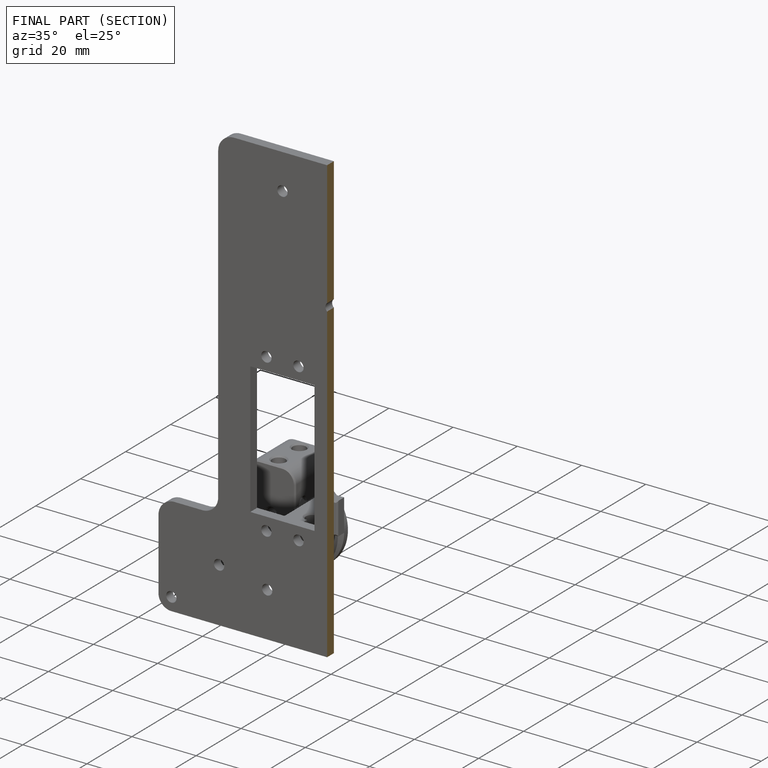
[diagram: finished part — half-section view (interior)]
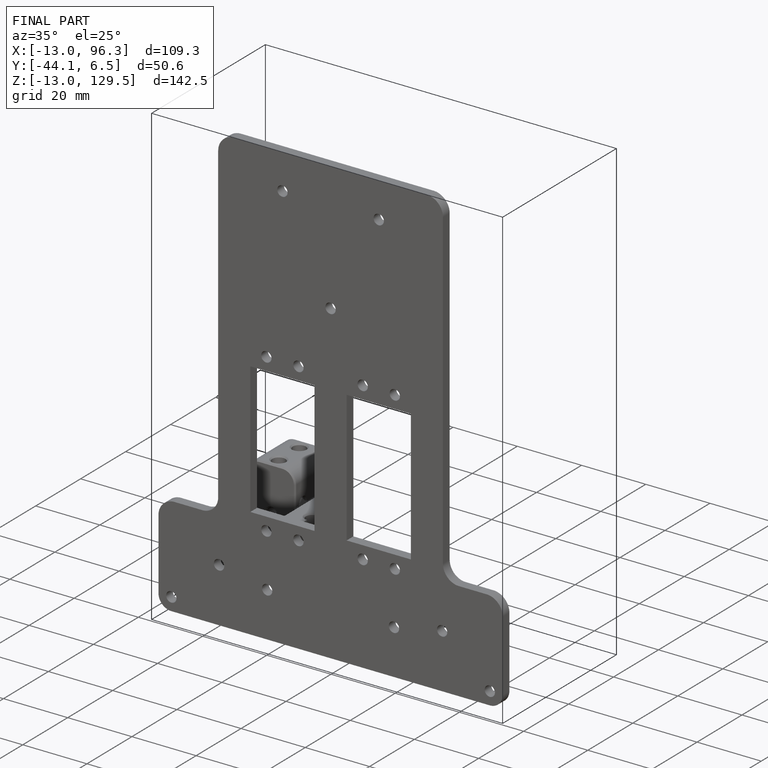
[diagram: finished part — iso view with bounding-box wireframe]
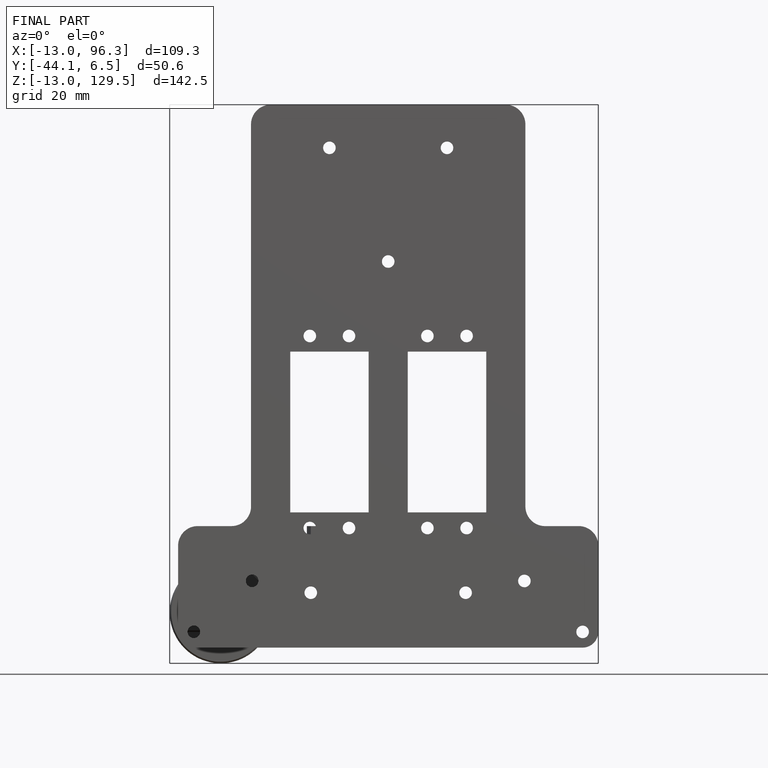
[diagram: finished part — front view with bounding-box wireframe]
